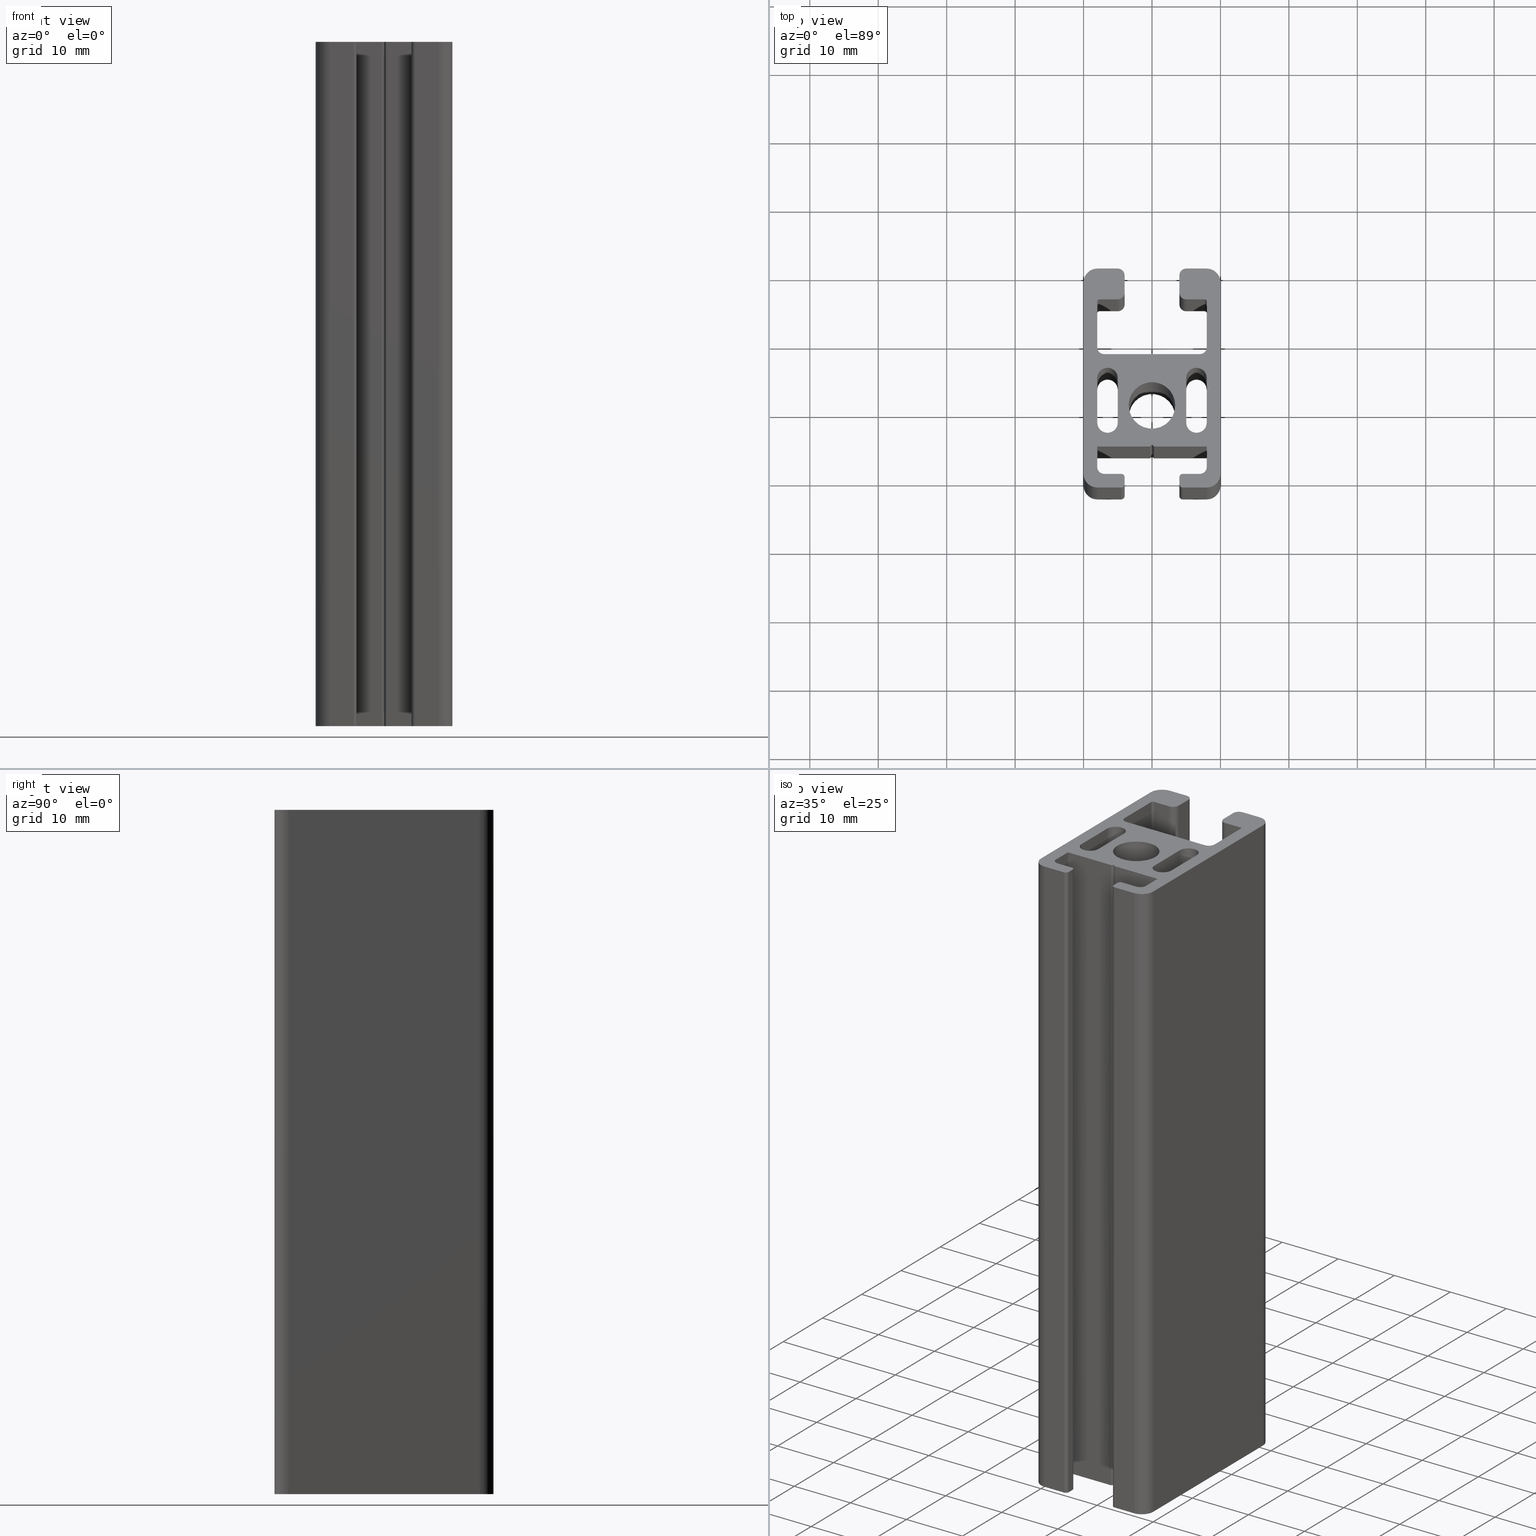
[diagram: canonical four-view strip — front | top / right | iso, engineering-drawing reading convention]
A machine part, canonical four-view strip (front | top / right | iso — engineering-drawing reading convention). The complete STEP part file that produces these views, byte-faithful:
ISO-10303-21;
HEADER;
/* Generated by software containing ST-Developer
 * from STEP Tools, Inc. (www.steptools.com) 
 */

FILE_DESCRIPTION(
/* description */ (''),
/* implementation_level */ '2;1');

FILE_NAME(
/* name */ 
'Q:\\Catalogo\\1_Profili Dierre\\Per Download Web\\Serie 40\\BPRDD0000
032.stp',
/* time_stamp */ '2017-07-12T11:01:27+02:00',
/* author */ ('fzagni'),
/* organization */ (''),
/* preprocessor_version */ 'ST-DEVELOPER v16.1',
/* originating_system */ 'Autodesk Inventor 2016',
/* authorisation */ '');

FILE_SCHEMA (('AUTOMOTIVE_DESIGN { 1 0 10303 214 3 1 1 }'));
ENDSEC;

DATA;
#10=MECHANICAL_DESIGN_GEOMETRIC_PRESENTATION_REPRESENTATION('',(#13),#1742);
#11=SHAPE_REPRESENTATION_RELATIONSHIP('SRR','None',#1751,#12);
#12=ADVANCED_BREP_SHAPE_REPRESENTATION('',(#14),#1741);
#13=STYLED_ITEM('',(#1760),#14);
#14=MANIFOLD_SOLID_BREP('Solido1',#1036);
#15=FACE_BOUND('',#108,.T.);
#16=FACE_BOUND('',#148,.T.);
#17=FACE_BOUND('',#149,.T.);
#18=FACE_BOUND('',#150,.T.);
#19=FACE_BOUND('',#159,.T.);
#20=FACE_BOUND('',#160,.T.);
#21=FACE_BOUND('',#161,.T.);
#22=PLANE('',#1041);
#23=PLANE('',#1045);
#24=PLANE('',#1049);
#25=PLANE('',#1053);
#26=PLANE('',#1063);
#27=PLANE('',#1067);
#28=PLANE('',#1071);
#29=PLANE('',#1072);
#30=PLANE('',#1073);
#31=PLANE('',#1074);
#32=PLANE('',#1075);
#33=PLANE('',#1076);
#34=PLANE('',#1080);
#35=PLANE('',#1084);
#36=PLANE('',#1088);
#37=PLANE('',#1092);
#38=PLANE('',#1096);
#39=PLANE('',#1100);
#40=PLANE('',#1107);
#41=PLANE('',#1111);
#42=PLANE('',#1115);
#43=PLANE('',#1116);
#44=PLANE('',#1117);
#45=PLANE('',#1118);
#46=PLANE('',#1119);
#47=PLANE('',#1126);
#48=PLANE('',#1131);
#49=PLANE('',#1134);
#50=PLANE('',#1135);
#51=FACE_OUTER_BOUND('',#103,.T.);
#52=FACE_OUTER_BOUND('',#104,.T.);
#53=FACE_OUTER_BOUND('',#105,.T.);
#54=FACE_OUTER_BOUND('',#106,.T.);
#55=FACE_OUTER_BOUND('',#107,.T.);
#56=FACE_OUTER_BOUND('',#109,.T.);
#57=FACE_OUTER_BOUND('',#110,.T.);
#58=FACE_OUTER_BOUND('',#111,.T.);
#59=FACE_OUTER_BOUND('',#112,.T.);
#60=FACE_OUTER_BOUND('',#113,.T.);
#61=FACE_OUTER_BOUND('',#114,.T.);
#62=FACE_OUTER_BOUND('',#115,.T.);
#63=FACE_OUTER_BOUND('',#116,.T.);
#64=FACE_OUTER_BOUND('',#117,.T.);
#65=FACE_OUTER_BOUND('',#118,.T.);
#66=FACE_OUTER_BOUND('',#119,.T.);
#67=FACE_OUTER_BOUND('',#120,.T.);
#68=FACE_OUTER_BOUND('',#121,.T.);
#69=FACE_OUTER_BOUND('',#122,.T.);
#70=FACE_OUTER_BOUND('',#123,.T.);
#71=FACE_OUTER_BOUND('',#124,.T.);
#72=FACE_OUTER_BOUND('',#125,.T.);
#73=FACE_OUTER_BOUND('',#126,.T.);
#74=FACE_OUTER_BOUND('',#127,.T.);
#75=FACE_OUTER_BOUND('',#128,.T.);
#76=FACE_OUTER_BOUND('',#129,.T.);
#77=FACE_OUTER_BOUND('',#130,.T.);
#78=FACE_OUTER_BOUND('',#131,.T.);
#79=FACE_OUTER_BOUND('',#132,.T.);
#80=FACE_OUTER_BOUND('',#133,.T.);
#81=FACE_OUTER_BOUND('',#134,.T.);
#82=FACE_OUTER_BOUND('',#135,.T.);
#83=FACE_OUTER_BOUND('',#136,.T.);
#84=FACE_OUTER_BOUND('',#137,.T.);
#85=FACE_OUTER_BOUND('',#138,.T.);
#86=FACE_OUTER_BOUND('',#139,.T.);
#87=FACE_OUTER_BOUND('',#140,.T.);
#88=FACE_OUTER_BOUND('',#141,.T.);
#89=FACE_OUTER_BOUND('',#142,.T.);
#90=FACE_OUTER_BOUND('',#143,.T.);
#91=FACE_OUTER_BOUND('',#144,.T.);
#92=FACE_OUTER_BOUND('',#145,.T.);
#93=FACE_OUTER_BOUND('',#146,.T.);
#94=FACE_OUTER_BOUND('',#147,.T.);
#95=FACE_OUTER_BOUND('',#151,.T.);
#96=FACE_OUTER_BOUND('',#152,.T.);
#97=FACE_OUTER_BOUND('',#153,.T.);
#98=FACE_OUTER_BOUND('',#154,.T.);
#99=FACE_OUTER_BOUND('',#155,.T.);
#100=FACE_OUTER_BOUND('',#156,.T.);
#101=FACE_OUTER_BOUND('',#157,.T.);
#102=FACE_OUTER_BOUND('',#158,.T.);
#103=EDGE_LOOP('',(#663,#664,#665,#666));
#104=EDGE_LOOP('',(#667,#668,#669,#670));
#105=EDGE_LOOP('',(#671,#672,#673,#674));
#106=EDGE_LOOP('',(#675,#676,#677,#678));
#107=EDGE_LOOP('',(#679));
#108=EDGE_LOOP('',(#680));
#109=EDGE_LOOP('',(#681,#682,#683,#684));
#110=EDGE_LOOP('',(#685,#686,#687,#688));
#111=EDGE_LOOP('',(#689,#690,#691,#692));
#112=EDGE_LOOP('',(#693,#694,#695,#696));
#113=EDGE_LOOP('',(#697,#698,#699,#700));
#114=EDGE_LOOP('',(#701,#702,#703,#704));
#115=EDGE_LOOP('',(#705,#706,#707,#708));
#116=EDGE_LOOP('',(#709,#710,#711,#712));
#117=EDGE_LOOP('',(#713,#714,#715,#716));
#118=EDGE_LOOP('',(#717,#718,#719,#720));
#119=EDGE_LOOP('',(#721,#722,#723,#724));
#120=EDGE_LOOP('',(#725,#726,#727,#728));
#121=EDGE_LOOP('',(#729,#730,#731,#732));
#122=EDGE_LOOP('',(#733,#734,#735,#736));
#123=EDGE_LOOP('',(#737,#738,#739,#740));
#124=EDGE_LOOP('',(#741,#742,#743,#744));
#125=EDGE_LOOP('',(#745,#746,#747,#748));
#126=EDGE_LOOP('',(#749,#750,#751,#752));
#127=EDGE_LOOP('',(#753,#754,#755,#756));
#128=EDGE_LOOP('',(#757,#758,#759,#760));
#129=EDGE_LOOP('',(#761,#762,#763,#764));
#130=EDGE_LOOP('',(#765,#766,#767,#768));
#131=EDGE_LOOP('',(#769,#770,#771,#772));
#132=EDGE_LOOP('',(#773,#774,#775,#776));
#133=EDGE_LOOP('',(#777,#778,#779,#780));
#134=EDGE_LOOP('',(#781,#782,#783,#784));
#135=EDGE_LOOP('',(#785,#786,#787,#788));
#136=EDGE_LOOP('',(#789,#790,#791,#792));
#137=EDGE_LOOP('',(#793,#794,#795,#796));
#138=EDGE_LOOP('',(#797,#798,#799,#800));
#139=EDGE_LOOP('',(#801,#802,#803,#804));
#140=EDGE_LOOP('',(#805,#806,#807,#808));
#141=EDGE_LOOP('',(#809,#810,#811,#812));
#142=EDGE_LOOP('',(#813,#814,#815,#816));
#143=EDGE_LOOP('',(#817,#818,#819,#820));
#144=EDGE_LOOP('',(#821,#822,#823,#824));
#145=EDGE_LOOP('',(#825,#826,#827,#828));
#146=EDGE_LOOP('',(#829,#830,#831,#832));
#147=EDGE_LOOP('',(#833,#834,#835,#836,#837,#838,#839,#840,#841,#842,#843,
#844,#845,#846,#847,#848,#849,#850,#851,#852,#853,#854,#855,#856,#857,#858,
#859,#860,#861,#862,#863,#864,#865,#866,#867,#868,#869,#870,#871,#872,#873));
#148=EDGE_LOOP('',(#874,#875,#876,#877));
#149=EDGE_LOOP('',(#878));
#150=EDGE_LOOP('',(#879,#880,#881,#882));
#151=EDGE_LOOP('',(#883,#884,#885,#886));
#152=EDGE_LOOP('',(#887,#888,#889,#890));
#153=EDGE_LOOP('',(#891,#892,#893,#894));
#154=EDGE_LOOP('',(#895,#896,#897,#898));
#155=EDGE_LOOP('',(#899,#900,#901,#902));
#156=EDGE_LOOP('',(#903,#904,#905,#906));
#157=EDGE_LOOP('',(#907,#908,#909,#910));
#158=EDGE_LOOP('',(#911,#912,#913,#914,#915,#916,#917,#918,#919,#920,#921,
#922,#923,#924,#925,#926,#927,#928,#929,#930,#931,#932,#933,#934,#935,#936,
#937,#938,#939,#940,#941,#942,#943,#944,#945,#946,#947,#948,#949,#950,#951));
#159=EDGE_LOOP('',(#952,#953,#954,#955));
#160=EDGE_LOOP('',(#956));
#161=EDGE_LOOP('',(#957,#958,#959,#960));
#162=LINE('',#1443,#265);
#163=LINE('',#1446,#266);
#164=LINE('',#1449,#267);
#165=LINE('',#1451,#268);
#166=LINE('',#1452,#269);
#167=LINE('',#1458,#270);
#168=LINE('',#1460,#271);
#169=LINE('',#1461,#272);
#170=LINE('',#1470,#273);
#171=LINE('',#1472,#274);
#172=LINE('',#1474,#275);
#173=LINE('',#1475,#276);
#174=LINE('',#1480,#277);
#175=LINE('',#1484,#278);
#176=LINE('',#1486,#279);
#177=LINE('',#1487,#280);
#178=LINE('',#1496,#281);
#179=LINE('',#1499,#282);
#180=LINE('',#1505,#283);
#181=LINE('',#1508,#284);
#182=LINE('',#1511,#285);
#183=LINE('',#1513,#286);
#184=LINE('',#1514,#287);
#185=LINE('',#1520,#288);
#186=LINE('',#1523,#289);
#187=LINE('',#1525,#290);
#188=LINE('',#1526,#291);
#189=LINE('',#1532,#292);
#190=LINE('',#1535,#293);
#191=LINE('',#1537,#294);
#192=LINE('',#1538,#295);
#193=LINE('',#1541,#296);
#194=LINE('',#1543,#297);
#195=LINE('',#1544,#298);
#196=LINE('',#1547,#299);
#197=LINE('',#1549,#300);
#198=LINE('',#1550,#301);
#199=LINE('',#1553,#302);
#200=LINE('',#1555,#303);
#201=LINE('',#1556,#304);
#202=LINE('',#1559,#305);
#203=LINE('',#1561,#306);
#204=LINE('',#1562,#307);
#205=LINE('',#1565,#308);
#206=LINE('',#1567,#309);
#207=LINE('',#1568,#310);
#208=LINE('',#1574,#311);
#209=LINE('',#1577,#312);
#210=LINE('',#1579,#313);
#211=LINE('',#1580,#314);
#212=LINE('',#1586,#315);
#213=LINE('',#1588,#316);
#214=LINE('',#1589,#317);
#215=LINE('',#1595,#318);
#216=LINE('',#1598,#319);
#217=LINE('',#1601,#320);
#218=LINE('',#1603,#321);
#219=LINE('',#1604,#322);
#220=LINE('',#1609,#323);
#221=LINE('',#1613,#324);
#222=LINE('',#1615,#325);
#223=LINE('',#1616,#326);
#224=LINE('',#1621,#327);
#225=LINE('',#1625,#328);
#226=LINE('',#1627,#329);
#227=LINE('',#1628,#330);
#228=LINE('',#1633,#331);
#229=LINE('',#1637,#332);
#230=LINE('',#1639,#333);
#231=LINE('',#1640,#334);
#232=LINE('',#1645,#335);
#233=LINE('',#1652,#336);
#234=LINE('',#1655,#337);
#235=LINE('',#1658,#338);
#236=LINE('',#1660,#339);
#237=LINE('',#1661,#340);
#238=LINE('',#1666,#341);
#239=LINE('',#1670,#342);
#240=LINE('',#1672,#343);
#241=LINE('',#1673,#344);
#242=LINE('',#1678,#345);
#243=LINE('',#1681,#346);
#244=LINE('',#1682,#347);
#245=LINE('',#1685,#348);
#246=LINE('',#1687,#349);
#247=LINE('',#1688,#350);
#248=LINE('',#1691,#351);
#249=LINE('',#1693,#352);
#250=LINE('',#1694,#353);
#251=LINE('',#1697,#354);
#252=LINE('',#1699,#355);
#253=LINE('',#1700,#356);
#254=LINE('',#1705,#357);
#255=LINE('',#1710,#358);
#256=LINE('',#1713,#359);
#257=LINE('',#1716,#360);
#258=LINE('',#1719,#361);
#259=LINE('',#1722,#362);
#260=LINE('',#1723,#363);
#261=LINE('',#1728,#364);
#262=LINE('',#1732,#365);
#263=LINE('',#1733,#366);
#264=LINE('',#1737,#367);
#265=VECTOR('',#1142,100.);
#266=VECTOR('',#1145,100.);
#267=VECTOR('',#1148,6.5);
#268=VECTOR('',#1149,6.5);
#269=VECTOR('',#1150,100.);
#270=VECTOR('',#1157,100.);
#271=VECTOR('',#1160,6.5);
#272=VECTOR('',#1161,6.5);
#273=VECTOR('',#1170,6.5);
#274=VECTOR('',#1171,100.);
#275=VECTOR('',#1172,6.5);
#276=VECTOR('',#1173,100.);
#277=VECTOR('',#1178,100.);
#278=VECTOR('',#1183,6.5);
#279=VECTOR('',#1184,100.);
#280=VECTOR('',#1185,6.5);
#281=VECTOR('',#1196,100.);
#282=VECTOR('',#1199,100.);
#283=VECTOR('',#1204,100.);
#284=VECTOR('',#1207,100.);
#285=VECTOR('',#1210,0.999999999999999);
#286=VECTOR('',#1211,0.999999999999999);
#287=VECTOR('',#1212,100.);
#288=VECTOR('',#1219,100.);
#289=VECTOR('',#1222,2.50000057528016);
#290=VECTOR('',#1223,2.50000057528016);
#291=VECTOR('',#1224,100.);
#292=VECTOR('',#1231,100.);
#293=VECTOR('',#1234,3.00000057528016);
#294=VECTOR('',#1235,3.00000057528016);
#295=VECTOR('',#1236,100.);
#296=VECTOR('',#1239,7.7);
#297=VECTOR('',#1240,7.7);
#298=VECTOR('',#1241,100.);
#299=VECTOR('',#1244,0.424264068711929);
#300=VECTOR('',#1245,0.424264068711929);
#301=VECTOR('',#1246,100.);
#302=VECTOR('',#1249,0.424264068711929);
#303=VECTOR('',#1250,0.424264068711929);
#304=VECTOR('',#1251,100.);
#305=VECTOR('',#1254,7.7);
#306=VECTOR('',#1255,7.7);
#307=VECTOR('',#1256,100.);
#308=VECTOR('',#1259,3.00000057528016);
#309=VECTOR('',#1260,3.00000057528016);
#310=VECTOR('',#1261,100.);
#311=VECTOR('',#1268,100.);
#312=VECTOR('',#1271,2.50000057528015);
#313=VECTOR('',#1272,2.50000057528015);
#314=VECTOR('',#1273,100.);
#315=VECTOR('',#1280,100.);
#316=VECTOR('',#1283,1.);
#317=VECTOR('',#1284,1.);
#318=VECTOR('',#1289,100.);
#319=VECTOR('',#1292,100.);
#320=VECTOR('',#1295,14.0000039919057);
#321=VECTOR('',#1296,100.);
#322=VECTOR('',#1297,14.0000039919057);
#323=VECTOR('',#1302,100.);
#324=VECTOR('',#1307,6.70000144973492);
#325=VECTOR('',#1308,100.);
#326=VECTOR('',#1309,6.70000144973492);
#327=VECTOR('',#1314,100.);
#328=VECTOR('',#1319,2.70000144973506);
#329=VECTOR('',#1320,100.);
#330=VECTOR('',#1321,2.70000144973506);
#331=VECTOR('',#1326,100.);
#332=VECTOR('',#1331,2.50000399190595);
#333=VECTOR('',#1332,100.);
#334=VECTOR('',#1333,2.50000399190595);
#335=VECTOR('',#1338,100.);
#336=VECTOR('',#1345,100.);
#337=VECTOR('',#1348,100.);
#338=VECTOR('',#1351,2.50000399190594);
#339=VECTOR('',#1352,100.);
#340=VECTOR('',#1353,2.50000399190594);
#341=VECTOR('',#1358,100.);
#342=VECTOR('',#1363,2.70000144973507);
#343=VECTOR('',#1364,100.);
#344=VECTOR('',#1365,2.70000144973507);
#345=VECTOR('',#1370,100.);
#346=VECTOR('',#1375,6.70000144973493);
#347=VECTOR('',#1376,6.70000144973493);
#348=VECTOR('',#1379,3.50000000000001);
#349=VECTOR('',#1380,100.);
#350=VECTOR('',#1381,3.50000000000001);
#351=VECTOR('',#1384,3.00000199595299);
#352=VECTOR('',#1385,100.);
#353=VECTOR('',#1386,3.00000199595299);
#354=VECTOR('',#1389,3.00000199595298);
#355=VECTOR('',#1390,100.);
#356=VECTOR('',#1391,3.00000199595298);
#357=VECTOR('',#1396,28.);
#358=VECTOR('',#1401,28.);
#359=VECTOR('',#1404,3.50000000000001);
#360=VECTOR('',#1407,100.);
#361=VECTOR('',#1410,100.);
#362=VECTOR('',#1413,100.);
#363=VECTOR('',#1414,28.);
#364=VECTOR('',#1421,100.);
#365=VECTOR('',#1426,100.);
#366=VECTOR('',#1427,28.);
#367=VECTOR('',#1434,3.50000000000001);
#368=CIRCLE('',#1039,1.5);
#369=CIRCLE('',#1040,1.5);
#370=CIRCLE('',#1043,1.5);
#371=CIRCLE('',#1044,1.5);
#372=CIRCLE('',#1047,3.4);
#373=CIRCLE('',#1048,3.4);
#374=CIRCLE('',#1051,1.5);
#375=CIRCLE('',#1052,1.5);
#376=CIRCLE('',#1055,1.5);
#377=CIRCLE('',#1056,1.5);
#378=CIRCLE('',#1058,0.5);
#379=CIRCLE('',#1059,0.5);
#380=CIRCLE('',#1061,0.5);
#381=CIRCLE('',#1062,0.5);
#382=CIRCLE('',#1065,0.5);
#383=CIRCLE('',#1066,0.5);
#384=CIRCLE('',#1069,0.999999424719845);
#385=CIRCLE('',#1070,0.999999424719845);
#386=CIRCLE('',#1078,0.999999424719841);
#387=CIRCLE('',#1079,0.999999424719841);
#388=CIRCLE('',#1082,0.5);
#389=CIRCLE('',#1083,0.5);
#390=CIRCLE('',#1086,0.999998004047153);
#391=CIRCLE('',#1087,0.999998004047153);
#392=CIRCLE('',#1090,0.99999800404715);
#393=CIRCLE('',#1091,0.99999800404715);
#394=CIRCLE('',#1094,0.300000546217916);
#395=CIRCLE('',#1095,0.300000546217916);
#396=CIRCLE('',#1098,0.999998004047022);
#397=CIRCLE('',#1099,0.999998004047022);
#398=CIRCLE('',#1102,0.999998004047022);
#399=CIRCLE('',#1103,0.999998004047022);
#400=CIRCLE('',#1105,0.999998004047026);
#401=CIRCLE('',#1106,0.999998004047026);
#402=CIRCLE('',#1109,0.999998004047022);
#403=CIRCLE('',#1110,0.999998004047022);
#404=CIRCLE('',#1113,0.300000546217913);
#405=CIRCLE('',#1114,0.300000546217913);
#406=CIRCLE('',#1120,2.);
#407=CIRCLE('',#1121,2.);
#408=CIRCLE('',#1122,1.99999999999999);
#409=CIRCLE('',#1123,2.);
#410=CIRCLE('',#1125,2.);
#411=CIRCLE('',#1128,1.99999999999999);
#412=CIRCLE('',#1130,2.);
#413=CIRCLE('',#1133,2.);
#414=VERTEX_POINT('',#1439);
#415=VERTEX_POINT('',#1440);
#416=VERTEX_POINT('',#1442);
#417=VERTEX_POINT('',#1444);
#418=VERTEX_POINT('',#1448);
#419=VERTEX_POINT('',#1450);
#420=VERTEX_POINT('',#1454);
#421=VERTEX_POINT('',#1456);
#422=VERTEX_POINT('',#1463);
#423=VERTEX_POINT('',#1465);
#424=VERTEX_POINT('',#1468);
#425=VERTEX_POINT('',#1469);
#426=VERTEX_POINT('',#1471);
#427=VERTEX_POINT('',#1473);
#428=VERTEX_POINT('',#1477);
#429=VERTEX_POINT('',#1479);
#430=VERTEX_POINT('',#1483);
#431=VERTEX_POINT('',#1485);
#432=VERTEX_POINT('',#1492);
#433=VERTEX_POINT('',#1493);
#434=VERTEX_POINT('',#1495);
#435=VERTEX_POINT('',#1497);
#436=VERTEX_POINT('',#1501);
#437=VERTEX_POINT('',#1502);
#438=VERTEX_POINT('',#1504);
#439=VERTEX_POINT('',#1506);
#440=VERTEX_POINT('',#1510);
#441=VERTEX_POINT('',#1512);
#442=VERTEX_POINT('',#1516);
#443=VERTEX_POINT('',#1518);
#444=VERTEX_POINT('',#1522);
#445=VERTEX_POINT('',#1524);
#446=VERTEX_POINT('',#1528);
#447=VERTEX_POINT('',#1530);
#448=VERTEX_POINT('',#1534);
#449=VERTEX_POINT('',#1536);
#450=VERTEX_POINT('',#1540);
#451=VERTEX_POINT('',#1542);
#452=VERTEX_POINT('',#1546);
#453=VERTEX_POINT('',#1548);
#454=VERTEX_POINT('',#1552);
#455=VERTEX_POINT('',#1554);
#456=VERTEX_POINT('',#1558);
#457=VERTEX_POINT('',#1560);
#458=VERTEX_POINT('',#1564);
#459=VERTEX_POINT('',#1566);
#460=VERTEX_POINT('',#1570);
#461=VERTEX_POINT('',#1572);
#462=VERTEX_POINT('',#1576);
#463=VERTEX_POINT('',#1578);
#464=VERTEX_POINT('',#1582);
#465=VERTEX_POINT('',#1584);
#466=VERTEX_POINT('',#1591);
#467=VERTEX_POINT('',#1592);
#468=VERTEX_POINT('',#1594);
#469=VERTEX_POINT('',#1596);
#470=VERTEX_POINT('',#1600);
#471=VERTEX_POINT('',#1602);
#472=VERTEX_POINT('',#1606);
#473=VERTEX_POINT('',#1608);
#474=VERTEX_POINT('',#1612);
#475=VERTEX_POINT('',#1614);
#476=VERTEX_POINT('',#1618);
#477=VERTEX_POINT('',#1620);
#478=VERTEX_POINT('',#1624);
#479=VERTEX_POINT('',#1626);
#480=VERTEX_POINT('',#1630);
#481=VERTEX_POINT('',#1632);
#482=VERTEX_POINT('',#1636);
#483=VERTEX_POINT('',#1638);
#484=VERTEX_POINT('',#1642);
#485=VERTEX_POINT('',#1644);
#486=VERTEX_POINT('',#1648);
#487=VERTEX_POINT('',#1649);
#488=VERTEX_POINT('',#1651);
#489=VERTEX_POINT('',#1653);
#490=VERTEX_POINT('',#1657);
#491=VERTEX_POINT('',#1659);
#492=VERTEX_POINT('',#1663);
#493=VERTEX_POINT('',#1665);
#494=VERTEX_POINT('',#1669);
#495=VERTEX_POINT('',#1671);
#496=VERTEX_POINT('',#1675);
#497=VERTEX_POINT('',#1677);
#498=VERTEX_POINT('',#1684);
#499=VERTEX_POINT('',#1686);
#500=VERTEX_POINT('',#1690);
#501=VERTEX_POINT('',#1692);
#502=VERTEX_POINT('',#1696);
#503=VERTEX_POINT('',#1698);
#504=VERTEX_POINT('',#1702);
#505=VERTEX_POINT('',#1704);
#506=VERTEX_POINT('',#1707);
#507=VERTEX_POINT('',#1709);
#508=VERTEX_POINT('',#1711);
#509=VERTEX_POINT('',#1715);
#510=VERTEX_POINT('',#1717);
#511=VERTEX_POINT('',#1721);
#512=VERTEX_POINT('',#1727);
#513=VERTEX_POINT('',#1731);
#514=EDGE_CURVE('',#414,#415,#368,.T.);
#515=EDGE_CURVE('',#416,#414,#162,.T.);
#516=EDGE_CURVE('',#417,#416,#369,.T.);
#517=EDGE_CURVE('',#417,#415,#163,.T.);
#518=EDGE_CURVE('',#415,#418,#164,.T.);
#519=EDGE_CURVE('',#419,#417,#165,.T.);
#520=EDGE_CURVE('',#419,#418,#166,.T.);
#521=EDGE_CURVE('',#418,#420,#370,.T.);
#522=EDGE_CURVE('',#421,#419,#371,.T.);
#523=EDGE_CURVE('',#421,#420,#167,.T.);
#524=EDGE_CURVE('',#420,#414,#168,.T.);
#525=EDGE_CURVE('',#416,#421,#169,.T.);
#526=EDGE_CURVE('',#422,#422,#372,.T.);
#527=EDGE_CURVE('',#423,#423,#373,.T.);
#528=EDGE_CURVE('',#424,#425,#170,.T.);
#529=EDGE_CURVE('',#426,#424,#171,.T.);
#530=EDGE_CURVE('',#427,#426,#172,.T.);
#531=EDGE_CURVE('',#427,#425,#173,.T.);
#532=EDGE_CURVE('',#428,#424,#374,.T.);
#533=EDGE_CURVE('',#429,#428,#174,.T.);
#534=EDGE_CURVE('',#426,#429,#375,.T.);
#535=EDGE_CURVE('',#430,#428,#175,.T.);
#536=EDGE_CURVE('',#431,#430,#176,.T.);
#537=EDGE_CURVE('',#429,#431,#177,.T.);
#538=EDGE_CURVE('',#425,#430,#376,.T.);
#539=EDGE_CURVE('',#431,#427,#377,.T.);
#540=EDGE_CURVE('',#432,#433,#378,.T.);
#541=EDGE_CURVE('',#434,#432,#178,.T.);
#542=EDGE_CURVE('',#435,#434,#379,.T.);
#543=EDGE_CURVE('',#433,#435,#179,.T.);
#544=EDGE_CURVE('',#436,#437,#380,.T.);
#545=EDGE_CURVE('',#436,#438,#180,.T.);
#546=EDGE_CURVE('',#439,#438,#381,.T.);
#547=EDGE_CURVE('',#439,#437,#181,.T.);
#548=EDGE_CURVE('',#437,#440,#182,.T.);
#549=EDGE_CURVE('',#441,#439,#183,.T.);
#550=EDGE_CURVE('',#441,#440,#184,.T.);
#551=EDGE_CURVE('',#440,#442,#382,.T.);
#552=EDGE_CURVE('',#443,#441,#383,.T.);
#553=EDGE_CURVE('',#443,#442,#185,.T.);
#554=EDGE_CURVE('',#442,#444,#186,.T.);
#555=EDGE_CURVE('',#445,#443,#187,.T.);
#556=EDGE_CURVE('',#445,#444,#188,.T.);
#557=EDGE_CURVE('',#444,#446,#384,.T.);
#558=EDGE_CURVE('',#447,#445,#385,.T.);
#559=EDGE_CURVE('',#447,#446,#189,.T.);
#560=EDGE_CURVE('',#446,#448,#190,.T.);
#561=EDGE_CURVE('',#449,#447,#191,.T.);
#562=EDGE_CURVE('',#449,#448,#192,.T.);
#563=EDGE_CURVE('',#448,#450,#193,.T.);
#564=EDGE_CURVE('',#451,#449,#194,.T.);
#565=EDGE_CURVE('',#451,#450,#195,.T.);
#566=EDGE_CURVE('',#450,#452,#196,.T.);
#567=EDGE_CURVE('',#453,#451,#197,.T.);
#568=EDGE_CURVE('',#453,#452,#198,.T.);
#569=EDGE_CURVE('',#452,#454,#199,.T.);
#570=EDGE_CURVE('',#455,#453,#200,.T.);
#571=EDGE_CURVE('',#455,#454,#201,.T.);
#572=EDGE_CURVE('',#454,#456,#202,.T.);
#573=EDGE_CURVE('',#457,#455,#203,.T.);
#574=EDGE_CURVE('',#457,#456,#204,.T.);
#575=EDGE_CURVE('',#456,#458,#205,.T.);
#576=EDGE_CURVE('',#459,#457,#206,.T.);
#577=EDGE_CURVE('',#459,#458,#207,.T.);
#578=EDGE_CURVE('',#458,#460,#386,.T.);
#579=EDGE_CURVE('',#461,#459,#387,.T.);
#580=EDGE_CURVE('',#461,#460,#208,.T.);
#581=EDGE_CURVE('',#460,#462,#209,.T.);
#582=EDGE_CURVE('',#463,#461,#210,.T.);
#583=EDGE_CURVE('',#463,#462,#211,.T.);
#584=EDGE_CURVE('',#462,#464,#388,.T.);
#585=EDGE_CURVE('',#465,#463,#389,.T.);
#586=EDGE_CURVE('',#465,#464,#212,.T.);
#587=EDGE_CURVE('',#464,#432,#213,.T.);
#588=EDGE_CURVE('',#434,#465,#214,.T.);
#589=EDGE_CURVE('',#466,#467,#390,.T.);
#590=EDGE_CURVE('',#468,#466,#215,.T.);
#591=EDGE_CURVE('',#469,#468,#391,.T.);
#592=EDGE_CURVE('',#469,#467,#216,.T.);
#593=EDGE_CURVE('',#470,#466,#217,.T.);
#594=EDGE_CURVE('',#471,#470,#218,.T.);
#595=EDGE_CURVE('',#468,#471,#219,.T.);
#596=EDGE_CURVE('',#472,#470,#392,.T.);
#597=EDGE_CURVE('',#473,#472,#220,.T.);
#598=EDGE_CURVE('',#471,#473,#393,.T.);
#599=EDGE_CURVE('',#474,#472,#221,.T.);
#600=EDGE_CURVE('',#475,#474,#222,.T.);
#601=EDGE_CURVE('',#473,#475,#223,.T.);
#602=EDGE_CURVE('',#476,#474,#394,.T.);
#603=EDGE_CURVE('',#477,#476,#224,.T.);
#604=EDGE_CURVE('',#475,#477,#395,.T.);
#605=EDGE_CURVE('',#478,#476,#225,.T.);
#606=EDGE_CURVE('',#479,#478,#226,.T.);
#607=EDGE_CURVE('',#477,#479,#227,.T.);
#608=EDGE_CURVE('',#480,#478,#396,.T.);
#609=EDGE_CURVE('',#481,#480,#228,.T.);
#610=EDGE_CURVE('',#479,#481,#397,.T.);
#611=EDGE_CURVE('',#482,#480,#229,.T.);
#612=EDGE_CURVE('',#483,#482,#230,.T.);
#613=EDGE_CURVE('',#481,#483,#231,.T.);
#614=EDGE_CURVE('',#484,#482,#398,.T.);
#615=EDGE_CURVE('',#484,#485,#232,.T.);
#616=EDGE_CURVE('',#483,#485,#399,.T.);
#617=EDGE_CURVE('',#486,#487,#400,.T.);
#618=EDGE_CURVE('',#488,#486,#233,.T.);
#619=EDGE_CURVE('',#489,#488,#401,.T.);
#620=EDGE_CURVE('',#487,#489,#234,.T.);
#621=EDGE_CURVE('',#490,#486,#235,.T.);
#622=EDGE_CURVE('',#491,#490,#236,.T.);
#623=EDGE_CURVE('',#488,#491,#237,.T.);
#624=EDGE_CURVE('',#492,#490,#402,.T.);
#625=EDGE_CURVE('',#493,#492,#238,.T.);
#626=EDGE_CURVE('',#491,#493,#403,.T.);
#627=EDGE_CURVE('',#494,#492,#239,.T.);
#628=EDGE_CURVE('',#495,#494,#240,.T.);
#629=EDGE_CURVE('',#493,#495,#241,.T.);
#630=EDGE_CURVE('',#496,#494,#404,.T.);
#631=EDGE_CURVE('',#497,#496,#242,.T.);
#632=EDGE_CURVE('',#495,#497,#405,.T.);
#633=EDGE_CURVE('',#467,#496,#243,.T.);
#634=EDGE_CURVE('',#497,#469,#244,.T.);
#635=EDGE_CURVE('',#498,#435,#245,.T.);
#636=EDGE_CURVE('',#498,#499,#246,.T.);
#637=EDGE_CURVE('',#499,#433,#247,.T.);
#638=EDGE_CURVE('',#500,#489,#248,.T.);
#639=EDGE_CURVE('',#500,#501,#249,.T.);
#640=EDGE_CURVE('',#501,#487,#250,.T.);
#641=EDGE_CURVE('',#484,#502,#251,.T.);
#642=EDGE_CURVE('',#503,#502,#252,.T.);
#643=EDGE_CURVE('',#485,#503,#253,.T.);
#644=EDGE_CURVE('',#504,#499,#406,.T.);
#645=EDGE_CURVE('',#505,#504,#254,.T.);
#646=EDGE_CURVE('',#502,#505,#407,.T.);
#647=EDGE_CURVE('',#506,#501,#408,.T.);
#648=EDGE_CURVE('',#507,#506,#255,.T.);
#649=EDGE_CURVE('',#508,#507,#409,.T.);
#650=EDGE_CURVE('',#436,#508,#256,.T.);
#651=EDGE_CURVE('',#509,#507,#257,.T.);
#652=EDGE_CURVE('',#510,#509,#410,.T.);
#653=EDGE_CURVE('',#510,#508,#258,.T.);
#654=EDGE_CURVE('',#511,#506,#259,.T.);
#655=EDGE_CURVE('',#509,#511,#260,.T.);
#656=EDGE_CURVE('',#511,#500,#411,.T.);
#657=EDGE_CURVE('',#512,#505,#261,.T.);
#658=EDGE_CURVE('',#503,#512,#412,.T.);
#659=EDGE_CURVE('',#513,#504,#262,.T.);
#660=EDGE_CURVE('',#512,#513,#263,.T.);
#661=EDGE_CURVE('',#513,#498,#413,.T.);
#662=EDGE_CURVE('',#438,#510,#264,.T.);
#663=ORIENTED_EDGE('',*,*,#514,.F.);
#664=ORIENTED_EDGE('',*,*,#515,.F.);
#665=ORIENTED_EDGE('',*,*,#516,.F.);
#666=ORIENTED_EDGE('',*,*,#517,.T.);
#667=ORIENTED_EDGE('',*,*,#518,.F.);
#668=ORIENTED_EDGE('',*,*,#517,.F.);
#669=ORIENTED_EDGE('',*,*,#519,.F.);
#670=ORIENTED_EDGE('',*,*,#520,.T.);
#671=ORIENTED_EDGE('',*,*,#521,.F.);
#672=ORIENTED_EDGE('',*,*,#520,.F.);
#673=ORIENTED_EDGE('',*,*,#522,.F.);
#674=ORIENTED_EDGE('',*,*,#523,.T.);
#675=ORIENTED_EDGE('',*,*,#524,.F.);
#676=ORIENTED_EDGE('',*,*,#523,.F.);
#677=ORIENTED_EDGE('',*,*,#525,.F.);
#678=ORIENTED_EDGE('',*,*,#515,.T.);
#679=ORIENTED_EDGE('',*,*,#526,.F.);
#680=ORIENTED_EDGE('',*,*,#527,.F.);
#681=ORIENTED_EDGE('',*,*,#528,.F.);
#682=ORIENTED_EDGE('',*,*,#529,.F.);
#683=ORIENTED_EDGE('',*,*,#530,.F.);
#684=ORIENTED_EDGE('',*,*,#531,.T.);
#685=ORIENTED_EDGE('',*,*,#532,.F.);
#686=ORIENTED_EDGE('',*,*,#533,.F.);
#687=ORIENTED_EDGE('',*,*,#534,.F.);
#688=ORIENTED_EDGE('',*,*,#529,.T.);
#689=ORIENTED_EDGE('',*,*,#535,.F.);
#690=ORIENTED_EDGE('',*,*,#536,.F.);
#691=ORIENTED_EDGE('',*,*,#537,.F.);
#692=ORIENTED_EDGE('',*,*,#533,.T.);
#693=ORIENTED_EDGE('',*,*,#538,.F.);
#694=ORIENTED_EDGE('',*,*,#531,.F.);
#695=ORIENTED_EDGE('',*,*,#539,.F.);
#696=ORIENTED_EDGE('',*,*,#536,.T.);
#697=ORIENTED_EDGE('',*,*,#540,.F.);
#698=ORIENTED_EDGE('',*,*,#541,.F.);
#699=ORIENTED_EDGE('',*,*,#542,.F.);
#700=ORIENTED_EDGE('',*,*,#543,.F.);
#701=ORIENTED_EDGE('',*,*,#544,.F.);
#702=ORIENTED_EDGE('',*,*,#545,.T.);
#703=ORIENTED_EDGE('',*,*,#546,.F.);
#704=ORIENTED_EDGE('',*,*,#547,.T.);
#705=ORIENTED_EDGE('',*,*,#548,.F.);
#706=ORIENTED_EDGE('',*,*,#547,.F.);
#707=ORIENTED_EDGE('',*,*,#549,.F.);
#708=ORIENTED_EDGE('',*,*,#550,.T.);
#709=ORIENTED_EDGE('',*,*,#551,.F.);
#710=ORIENTED_EDGE('',*,*,#550,.F.);
#711=ORIENTED_EDGE('',*,*,#552,.F.);
#712=ORIENTED_EDGE('',*,*,#553,.T.);
#713=ORIENTED_EDGE('',*,*,#554,.F.);
#714=ORIENTED_EDGE('',*,*,#553,.F.);
#715=ORIENTED_EDGE('',*,*,#555,.F.);
#716=ORIENTED_EDGE('',*,*,#556,.T.);
#717=ORIENTED_EDGE('',*,*,#557,.F.);
#718=ORIENTED_EDGE('',*,*,#556,.F.);
#719=ORIENTED_EDGE('',*,*,#558,.F.);
#720=ORIENTED_EDGE('',*,*,#559,.T.);
#721=ORIENTED_EDGE('',*,*,#560,.F.);
#722=ORIENTED_EDGE('',*,*,#559,.F.);
#723=ORIENTED_EDGE('',*,*,#561,.F.);
#724=ORIENTED_EDGE('',*,*,#562,.T.);
#725=ORIENTED_EDGE('',*,*,#563,.F.);
#726=ORIENTED_EDGE('',*,*,#562,.F.);
#727=ORIENTED_EDGE('',*,*,#564,.F.);
#728=ORIENTED_EDGE('',*,*,#565,.T.);
#729=ORIENTED_EDGE('',*,*,#566,.F.);
#730=ORIENTED_EDGE('',*,*,#565,.F.);
#731=ORIENTED_EDGE('',*,*,#567,.F.);
#732=ORIENTED_EDGE('',*,*,#568,.T.);
#733=ORIENTED_EDGE('',*,*,#569,.F.);
#734=ORIENTED_EDGE('',*,*,#568,.F.);
#735=ORIENTED_EDGE('',*,*,#570,.F.);
#736=ORIENTED_EDGE('',*,*,#571,.T.);
#737=ORIENTED_EDGE('',*,*,#572,.F.);
#738=ORIENTED_EDGE('',*,*,#571,.F.);
#739=ORIENTED_EDGE('',*,*,#573,.F.);
#740=ORIENTED_EDGE('',*,*,#574,.T.);
#741=ORIENTED_EDGE('',*,*,#575,.F.);
#742=ORIENTED_EDGE('',*,*,#574,.F.);
#743=ORIENTED_EDGE('',*,*,#576,.F.);
#744=ORIENTED_EDGE('',*,*,#577,.T.);
#745=ORIENTED_EDGE('',*,*,#578,.F.);
#746=ORIENTED_EDGE('',*,*,#577,.F.);
#747=ORIENTED_EDGE('',*,*,#579,.F.);
#748=ORIENTED_EDGE('',*,*,#580,.T.);
#749=ORIENTED_EDGE('',*,*,#581,.F.);
#750=ORIENTED_EDGE('',*,*,#580,.F.);
#751=ORIENTED_EDGE('',*,*,#582,.F.);
#752=ORIENTED_EDGE('',*,*,#583,.T.);
#753=ORIENTED_EDGE('',*,*,#584,.F.);
#754=ORIENTED_EDGE('',*,*,#583,.F.);
#755=ORIENTED_EDGE('',*,*,#585,.F.);
#756=ORIENTED_EDGE('',*,*,#586,.T.);
#757=ORIENTED_EDGE('',*,*,#587,.F.);
#758=ORIENTED_EDGE('',*,*,#586,.F.);
#759=ORIENTED_EDGE('',*,*,#588,.F.);
#760=ORIENTED_EDGE('',*,*,#541,.T.);
#761=ORIENTED_EDGE('',*,*,#589,.F.);
#762=ORIENTED_EDGE('',*,*,#590,.F.);
#763=ORIENTED_EDGE('',*,*,#591,.F.);
#764=ORIENTED_EDGE('',*,*,#592,.T.);
#765=ORIENTED_EDGE('',*,*,#593,.F.);
#766=ORIENTED_EDGE('',*,*,#594,.F.);
#767=ORIENTED_EDGE('',*,*,#595,.F.);
#768=ORIENTED_EDGE('',*,*,#590,.T.);
#769=ORIENTED_EDGE('',*,*,#596,.F.);
#770=ORIENTED_EDGE('',*,*,#597,.F.);
#771=ORIENTED_EDGE('',*,*,#598,.F.);
#772=ORIENTED_EDGE('',*,*,#594,.T.);
#773=ORIENTED_EDGE('',*,*,#599,.F.);
#774=ORIENTED_EDGE('',*,*,#600,.F.);
#775=ORIENTED_EDGE('',*,*,#601,.F.);
#776=ORIENTED_EDGE('',*,*,#597,.T.);
#777=ORIENTED_EDGE('',*,*,#602,.F.);
#778=ORIENTED_EDGE('',*,*,#603,.F.);
#779=ORIENTED_EDGE('',*,*,#604,.F.);
#780=ORIENTED_EDGE('',*,*,#600,.T.);
#781=ORIENTED_EDGE('',*,*,#605,.F.);
#782=ORIENTED_EDGE('',*,*,#606,.F.);
#783=ORIENTED_EDGE('',*,*,#607,.F.);
#784=ORIENTED_EDGE('',*,*,#603,.T.);
#785=ORIENTED_EDGE('',*,*,#608,.F.);
#786=ORIENTED_EDGE('',*,*,#609,.F.);
#787=ORIENTED_EDGE('',*,*,#610,.F.);
#788=ORIENTED_EDGE('',*,*,#606,.T.);
#789=ORIENTED_EDGE('',*,*,#611,.F.);
#790=ORIENTED_EDGE('',*,*,#612,.F.);
#791=ORIENTED_EDGE('',*,*,#613,.F.);
#792=ORIENTED_EDGE('',*,*,#609,.T.);
#793=ORIENTED_EDGE('',*,*,#614,.F.);
#794=ORIENTED_EDGE('',*,*,#615,.T.);
#795=ORIENTED_EDGE('',*,*,#616,.F.);
#796=ORIENTED_EDGE('',*,*,#612,.T.);
#797=ORIENTED_EDGE('',*,*,#617,.F.);
#798=ORIENTED_EDGE('',*,*,#618,.F.);
#799=ORIENTED_EDGE('',*,*,#619,.F.);
#800=ORIENTED_EDGE('',*,*,#620,.F.);
#801=ORIENTED_EDGE('',*,*,#621,.F.);
#802=ORIENTED_EDGE('',*,*,#622,.F.);
#803=ORIENTED_EDGE('',*,*,#623,.F.);
#804=ORIENTED_EDGE('',*,*,#618,.T.);
#805=ORIENTED_EDGE('',*,*,#624,.F.);
#806=ORIENTED_EDGE('',*,*,#625,.F.);
#807=ORIENTED_EDGE('',*,*,#626,.F.);
#808=ORIENTED_EDGE('',*,*,#622,.T.);
#809=ORIENTED_EDGE('',*,*,#627,.F.);
#810=ORIENTED_EDGE('',*,*,#628,.F.);
#811=ORIENTED_EDGE('',*,*,#629,.F.);
#812=ORIENTED_EDGE('',*,*,#625,.T.);
#813=ORIENTED_EDGE('',*,*,#630,.F.);
#814=ORIENTED_EDGE('',*,*,#631,.F.);
#815=ORIENTED_EDGE('',*,*,#632,.F.);
#816=ORIENTED_EDGE('',*,*,#628,.T.);
#817=ORIENTED_EDGE('',*,*,#633,.F.);
#818=ORIENTED_EDGE('',*,*,#592,.F.);
#819=ORIENTED_EDGE('',*,*,#634,.F.);
#820=ORIENTED_EDGE('',*,*,#631,.T.);
#821=ORIENTED_EDGE('',*,*,#543,.T.);
#822=ORIENTED_EDGE('',*,*,#635,.F.);
#823=ORIENTED_EDGE('',*,*,#636,.T.);
#824=ORIENTED_EDGE('',*,*,#637,.T.);
#825=ORIENTED_EDGE('',*,*,#620,.T.);
#826=ORIENTED_EDGE('',*,*,#638,.F.);
#827=ORIENTED_EDGE('',*,*,#639,.T.);
#828=ORIENTED_EDGE('',*,*,#640,.T.);
#829=ORIENTED_EDGE('',*,*,#615,.F.);
#830=ORIENTED_EDGE('',*,*,#641,.T.);
#831=ORIENTED_EDGE('',*,*,#642,.F.);
#832=ORIENTED_EDGE('',*,*,#643,.F.);
#833=ORIENTED_EDGE('',*,*,#544,.T.);
#834=ORIENTED_EDGE('',*,*,#548,.T.);
#835=ORIENTED_EDGE('',*,*,#551,.T.);
#836=ORIENTED_EDGE('',*,*,#554,.T.);
#837=ORIENTED_EDGE('',*,*,#557,.T.);
#838=ORIENTED_EDGE('',*,*,#560,.T.);
#839=ORIENTED_EDGE('',*,*,#563,.T.);
#840=ORIENTED_EDGE('',*,*,#566,.T.);
#841=ORIENTED_EDGE('',*,*,#569,.T.);
#842=ORIENTED_EDGE('',*,*,#572,.T.);
#843=ORIENTED_EDGE('',*,*,#575,.T.);
#844=ORIENTED_EDGE('',*,*,#578,.T.);
#845=ORIENTED_EDGE('',*,*,#581,.T.);
#846=ORIENTED_EDGE('',*,*,#584,.T.);
#847=ORIENTED_EDGE('',*,*,#587,.T.);
#848=ORIENTED_EDGE('',*,*,#540,.T.);
#849=ORIENTED_EDGE('',*,*,#637,.F.);
#850=ORIENTED_EDGE('',*,*,#644,.F.);
#851=ORIENTED_EDGE('',*,*,#645,.F.);
#852=ORIENTED_EDGE('',*,*,#646,.F.);
#853=ORIENTED_EDGE('',*,*,#641,.F.);
#854=ORIENTED_EDGE('',*,*,#614,.T.);
#855=ORIENTED_EDGE('',*,*,#611,.T.);
#856=ORIENTED_EDGE('',*,*,#608,.T.);
#857=ORIENTED_EDGE('',*,*,#605,.T.);
#858=ORIENTED_EDGE('',*,*,#602,.T.);
#859=ORIENTED_EDGE('',*,*,#599,.T.);
#860=ORIENTED_EDGE('',*,*,#596,.T.);
#861=ORIENTED_EDGE('',*,*,#593,.T.);
#862=ORIENTED_EDGE('',*,*,#589,.T.);
#863=ORIENTED_EDGE('',*,*,#633,.T.);
#864=ORIENTED_EDGE('',*,*,#630,.T.);
#865=ORIENTED_EDGE('',*,*,#627,.T.);
#866=ORIENTED_EDGE('',*,*,#624,.T.);
#867=ORIENTED_EDGE('',*,*,#621,.T.);
#868=ORIENTED_EDGE('',*,*,#617,.T.);
#869=ORIENTED_EDGE('',*,*,#640,.F.);
#870=ORIENTED_EDGE('',*,*,#647,.F.);
#871=ORIENTED_EDGE('',*,*,#648,.F.);
#872=ORIENTED_EDGE('',*,*,#649,.F.);
#873=ORIENTED_EDGE('',*,*,#650,.F.);
#874=ORIENTED_EDGE('',*,*,#528,.T.);
#875=ORIENTED_EDGE('',*,*,#538,.T.);
#876=ORIENTED_EDGE('',*,*,#535,.T.);
#877=ORIENTED_EDGE('',*,*,#532,.T.);
#878=ORIENTED_EDGE('',*,*,#526,.T.);
#879=ORIENTED_EDGE('',*,*,#514,.T.);
#880=ORIENTED_EDGE('',*,*,#518,.T.);
#881=ORIENTED_EDGE('',*,*,#521,.T.);
#882=ORIENTED_EDGE('',*,*,#524,.T.);
#883=ORIENTED_EDGE('',*,*,#649,.T.);
#884=ORIENTED_EDGE('',*,*,#651,.F.);
#885=ORIENTED_EDGE('',*,*,#652,.F.);
#886=ORIENTED_EDGE('',*,*,#653,.T.);
#887=ORIENTED_EDGE('',*,*,#648,.T.);
#888=ORIENTED_EDGE('',*,*,#654,.F.);
#889=ORIENTED_EDGE('',*,*,#655,.F.);
#890=ORIENTED_EDGE('',*,*,#651,.T.);
#891=ORIENTED_EDGE('',*,*,#647,.T.);
#892=ORIENTED_EDGE('',*,*,#639,.F.);
#893=ORIENTED_EDGE('',*,*,#656,.F.);
#894=ORIENTED_EDGE('',*,*,#654,.T.);
#895=ORIENTED_EDGE('',*,*,#646,.T.);
#896=ORIENTED_EDGE('',*,*,#657,.F.);
#897=ORIENTED_EDGE('',*,*,#658,.F.);
#898=ORIENTED_EDGE('',*,*,#642,.T.);
#899=ORIENTED_EDGE('',*,*,#645,.T.);
#900=ORIENTED_EDGE('',*,*,#659,.F.);
#901=ORIENTED_EDGE('',*,*,#660,.F.);
#902=ORIENTED_EDGE('',*,*,#657,.T.);
#903=ORIENTED_EDGE('',*,*,#644,.T.);
#904=ORIENTED_EDGE('',*,*,#636,.F.);
#905=ORIENTED_EDGE('',*,*,#661,.F.);
#906=ORIENTED_EDGE('',*,*,#659,.T.);
#907=ORIENTED_EDGE('',*,*,#545,.F.);
#908=ORIENTED_EDGE('',*,*,#650,.T.);
#909=ORIENTED_EDGE('',*,*,#653,.F.);
#910=ORIENTED_EDGE('',*,*,#662,.F.);
#911=ORIENTED_EDGE('',*,*,#546,.T.);
#912=ORIENTED_EDGE('',*,*,#662,.T.);
#913=ORIENTED_EDGE('',*,*,#652,.T.);
#914=ORIENTED_EDGE('',*,*,#655,.T.);
#915=ORIENTED_EDGE('',*,*,#656,.T.);
#916=ORIENTED_EDGE('',*,*,#638,.T.);
#917=ORIENTED_EDGE('',*,*,#619,.T.);
#918=ORIENTED_EDGE('',*,*,#623,.T.);
#919=ORIENTED_EDGE('',*,*,#626,.T.);
#920=ORIENTED_EDGE('',*,*,#629,.T.);
#921=ORIENTED_EDGE('',*,*,#632,.T.);
#922=ORIENTED_EDGE('',*,*,#634,.T.);
#923=ORIENTED_EDGE('',*,*,#591,.T.);
#924=ORIENTED_EDGE('',*,*,#595,.T.);
#925=ORIENTED_EDGE('',*,*,#598,.T.);
#926=ORIENTED_EDGE('',*,*,#601,.T.);
#927=ORIENTED_EDGE('',*,*,#604,.T.);
#928=ORIENTED_EDGE('',*,*,#607,.T.);
#929=ORIENTED_EDGE('',*,*,#610,.T.);
#930=ORIENTED_EDGE('',*,*,#613,.T.);
#931=ORIENTED_EDGE('',*,*,#616,.T.);
#932=ORIENTED_EDGE('',*,*,#643,.T.);
#933=ORIENTED_EDGE('',*,*,#658,.T.);
#934=ORIENTED_EDGE('',*,*,#660,.T.);
#935=ORIENTED_EDGE('',*,*,#661,.T.);
#936=ORIENTED_EDGE('',*,*,#635,.T.);
#937=ORIENTED_EDGE('',*,*,#542,.T.);
#938=ORIENTED_EDGE('',*,*,#588,.T.);
#939=ORIENTED_EDGE('',*,*,#585,.T.);
#940=ORIENTED_EDGE('',*,*,#582,.T.);
#941=ORIENTED_EDGE('',*,*,#579,.T.);
#942=ORIENTED_EDGE('',*,*,#576,.T.);
#943=ORIENTED_EDGE('',*,*,#573,.T.);
#944=ORIENTED_EDGE('',*,*,#570,.T.);
#945=ORIENTED_EDGE('',*,*,#567,.T.);
#946=ORIENTED_EDGE('',*,*,#564,.T.);
#947=ORIENTED_EDGE('',*,*,#561,.T.);
#948=ORIENTED_EDGE('',*,*,#558,.T.);
#949=ORIENTED_EDGE('',*,*,#555,.T.);
#950=ORIENTED_EDGE('',*,*,#552,.T.);
#951=ORIENTED_EDGE('',*,*,#549,.T.);
#952=ORIENTED_EDGE('',*,*,#516,.T.);
#953=ORIENTED_EDGE('',*,*,#525,.T.);
#954=ORIENTED_EDGE('',*,*,#522,.T.);
#955=ORIENTED_EDGE('',*,*,#519,.T.);
#956=ORIENTED_EDGE('',*,*,#527,.T.);
#957=ORIENTED_EDGE('',*,*,#530,.T.);
#958=ORIENTED_EDGE('',*,*,#534,.T.);
#959=ORIENTED_EDGE('',*,*,#537,.T.);
#960=ORIENTED_EDGE('',*,*,#539,.T.);
#961=CYLINDRICAL_SURFACE('',#1038,1.5);
#962=CYLINDRICAL_SURFACE('',#1042,1.5);
#963=CYLINDRICAL_SURFACE('',#1046,3.4);
#964=CYLINDRICAL_SURFACE('',#1050,1.5);
#965=CYLINDRICAL_SURFACE('',#1054,1.5);
#966=CYLINDRICAL_SURFACE('',#1057,0.5);
#967=CYLINDRICAL_SURFACE('',#1060,0.5);
#968=CYLINDRICAL_SURFACE('',#1064,0.5);
#969=CYLINDRICAL_SURFACE('',#1068,0.999999424719845);
#970=CYLINDRICAL_SURFACE('',#1077,0.999999424719841);
#971=CYLINDRICAL_SURFACE('',#1081,0.5);
#972=CYLINDRICAL_SURFACE('',#1085,0.999998004047153);
#973=CYLINDRICAL_SURFACE('',#1089,0.99999800404715);
#974=CYLINDRICAL_SURFACE('',#1093,0.300000546217916);
#975=CYLINDRICAL_SURFACE('',#1097,0.999998004047022);
#976=CYLINDRICAL_SURFACE('',#1101,0.999998004047022);
#977=CYLINDRICAL_SURFACE('',#1104,0.999998004047026);
#978=CYLINDRICAL_SURFACE('',#1108,0.999998004047022);
#979=CYLINDRICAL_SURFACE('',#1112,0.300000546217913);
#980=CYLINDRICAL_SURFACE('',#1124,2.);
#981=CYLINDRICAL_SURFACE('',#1127,1.99999999999999);
#982=CYLINDRICAL_SURFACE('',#1129,2.);
#983=CYLINDRICAL_SURFACE('',#1132,2.);
#984=ADVANCED_FACE('',(#51),#961,.F.);
#985=ADVANCED_FACE('',(#52),#22,.F.);
#986=ADVANCED_FACE('',(#53),#962,.F.);
#987=ADVANCED_FACE('',(#54),#23,.F.);
#988=ADVANCED_FACE('',(#55,#15),#963,.F.);
#989=ADVANCED_FACE('',(#56),#24,.F.);
#990=ADVANCED_FACE('',(#57),#964,.F.);
#991=ADVANCED_FACE('',(#58),#25,.F.);
#992=ADVANCED_FACE('',(#59),#965,.F.);
#993=ADVANCED_FACE('',(#60),#966,.T.);
#994=ADVANCED_FACE('',(#61),#967,.T.);
#995=ADVANCED_FACE('',(#62),#26,.F.);
#996=ADVANCED_FACE('',(#63),#968,.T.);
#997=ADVANCED_FACE('',(#64),#27,.F.);
#998=ADVANCED_FACE('',(#65),#969,.F.);
#999=ADVANCED_FACE('',(#66),#28,.F.);
#1000=ADVANCED_FACE('',(#67),#29,.F.);
#1001=ADVANCED_FACE('',(#68),#30,.F.);
#1002=ADVANCED_FACE('',(#69),#31,.F.);
#1003=ADVANCED_FACE('',(#70),#32,.F.);
#1004=ADVANCED_FACE('',(#71),#33,.F.);
#1005=ADVANCED_FACE('',(#72),#970,.F.);
#1006=ADVANCED_FACE('',(#73),#34,.F.);
#1007=ADVANCED_FACE('',(#74),#971,.T.);
#1008=ADVANCED_FACE('',(#75),#35,.F.);
#1009=ADVANCED_FACE('',(#76),#972,.F.);
#1010=ADVANCED_FACE('',(#77),#36,.F.);
#1011=ADVANCED_FACE('',(#78),#973,.F.);
#1012=ADVANCED_FACE('',(#79),#37,.F.);
#1013=ADVANCED_FACE('',(#80),#974,.F.);
#1014=ADVANCED_FACE('',(#81),#38,.F.);
#1015=ADVANCED_FACE('',(#82),#975,.T.);
#1016=ADVANCED_FACE('',(#83),#39,.F.);
#1017=ADVANCED_FACE('',(#84),#976,.T.);
#1018=ADVANCED_FACE('',(#85),#977,.T.);
#1019=ADVANCED_FACE('',(#86),#40,.F.);
#1020=ADVANCED_FACE('',(#87),#978,.T.);
#1021=ADVANCED_FACE('',(#88),#41,.F.);
#1022=ADVANCED_FACE('',(#89),#979,.F.);
#1023=ADVANCED_FACE('',(#90),#42,.F.);
#1024=ADVANCED_FACE('',(#91),#43,.T.);
#1025=ADVANCED_FACE('',(#92),#44,.T.);
#1026=ADVANCED_FACE('',(#93),#45,.T.);
#1027=ADVANCED_FACE('',(#94,#16,#17,#18),#46,.T.);
#1028=ADVANCED_FACE('',(#95),#980,.T.);
#1029=ADVANCED_FACE('',(#96),#47,.T.);
#1030=ADVANCED_FACE('',(#97),#981,.T.);
#1031=ADVANCED_FACE('',(#98),#982,.T.);
#1032=ADVANCED_FACE('',(#99),#48,.T.);
#1033=ADVANCED_FACE('',(#100),#983,.T.);
#1034=ADVANCED_FACE('',(#101),#49,.T.);
#1035=ADVANCED_FACE('',(#102,#19,#20,#21),#50,.F.);
#1036=CLOSED_SHELL('',(#984,#985,#986,#987,#988,#989,#990,#991,#992,#993,
#994,#995,#996,#997,#998,#999,#1000,#1001,#1002,#1003,#1004,#1005,#1006,
#1007,#1008,#1009,#1010,#1011,#1012,#1013,#1014,#1015,#1016,#1017,#1018,
#1019,#1020,#1021,#1022,#1023,#1024,#1025,#1026,#1027,#1028,#1029,#1030,
#1031,#1032,#1033,#1034,#1035));
#1037=AXIS2_PLACEMENT_3D('placement',#1437,#1136,#1137);
#1038=AXIS2_PLACEMENT_3D('',#1438,#1138,#1139);
#1039=AXIS2_PLACEMENT_3D('',#1441,#1140,#1141);
#1040=AXIS2_PLACEMENT_3D('',#1445,#1143,#1144);
#1041=AXIS2_PLACEMENT_3D('',#1447,#1146,#1147);
#1042=AXIS2_PLACEMENT_3D('',#1453,#1151,#1152);
#1043=AXIS2_PLACEMENT_3D('',#1455,#1153,#1154);
#1044=AXIS2_PLACEMENT_3D('',#1457,#1155,#1156);
#1045=AXIS2_PLACEMENT_3D('',#1459,#1158,#1159);
#1046=AXIS2_PLACEMENT_3D('',#1462,#1162,#1163);
#1047=AXIS2_PLACEMENT_3D('',#1464,#1164,#1165);
#1048=AXIS2_PLACEMENT_3D('',#1466,#1166,#1167);
#1049=AXIS2_PLACEMENT_3D('',#1467,#1168,#1169);
#1050=AXIS2_PLACEMENT_3D('',#1476,#1174,#1175);
#1051=AXIS2_PLACEMENT_3D('',#1478,#1176,#1177);
#1052=AXIS2_PLACEMENT_3D('',#1481,#1179,#1180);
#1053=AXIS2_PLACEMENT_3D('',#1482,#1181,#1182);
#1054=AXIS2_PLACEMENT_3D('',#1488,#1186,#1187);
#1055=AXIS2_PLACEMENT_3D('',#1489,#1188,#1189);
#1056=AXIS2_PLACEMENT_3D('',#1490,#1190,#1191);
#1057=AXIS2_PLACEMENT_3D('',#1491,#1192,#1193);
#1058=AXIS2_PLACEMENT_3D('',#1494,#1194,#1195);
#1059=AXIS2_PLACEMENT_3D('',#1498,#1197,#1198);
#1060=AXIS2_PLACEMENT_3D('',#1500,#1200,#1201);
#1061=AXIS2_PLACEMENT_3D('',#1503,#1202,#1203);
#1062=AXIS2_PLACEMENT_3D('',#1507,#1205,#1206);
#1063=AXIS2_PLACEMENT_3D('',#1509,#1208,#1209);
#1064=AXIS2_PLACEMENT_3D('',#1515,#1213,#1214);
#1065=AXIS2_PLACEMENT_3D('',#1517,#1215,#1216);
#1066=AXIS2_PLACEMENT_3D('',#1519,#1217,#1218);
#1067=AXIS2_PLACEMENT_3D('',#1521,#1220,#1221);
#1068=AXIS2_PLACEMENT_3D('',#1527,#1225,#1226);
#1069=AXIS2_PLACEMENT_3D('',#1529,#1227,#1228);
#1070=AXIS2_PLACEMENT_3D('',#1531,#1229,#1230);
#1071=AXIS2_PLACEMENT_3D('',#1533,#1232,#1233);
#1072=AXIS2_PLACEMENT_3D('',#1539,#1237,#1238);
#1073=AXIS2_PLACEMENT_3D('',#1545,#1242,#1243);
#1074=AXIS2_PLACEMENT_3D('',#1551,#1247,#1248);
#1075=AXIS2_PLACEMENT_3D('',#1557,#1252,#1253);
#1076=AXIS2_PLACEMENT_3D('',#1563,#1257,#1258);
#1077=AXIS2_PLACEMENT_3D('',#1569,#1262,#1263);
#1078=AXIS2_PLACEMENT_3D('',#1571,#1264,#1265);
#1079=AXIS2_PLACEMENT_3D('',#1573,#1266,#1267);
#1080=AXIS2_PLACEMENT_3D('',#1575,#1269,#1270);
#1081=AXIS2_PLACEMENT_3D('',#1581,#1274,#1275);
#1082=AXIS2_PLACEMENT_3D('',#1583,#1276,#1277);
#1083=AXIS2_PLACEMENT_3D('',#1585,#1278,#1279);
#1084=AXIS2_PLACEMENT_3D('',#1587,#1281,#1282);
#1085=AXIS2_PLACEMENT_3D('',#1590,#1285,#1286);
#1086=AXIS2_PLACEMENT_3D('',#1593,#1287,#1288);
#1087=AXIS2_PLACEMENT_3D('',#1597,#1290,#1291);
#1088=AXIS2_PLACEMENT_3D('',#1599,#1293,#1294);
#1089=AXIS2_PLACEMENT_3D('',#1605,#1298,#1299);
#1090=AXIS2_PLACEMENT_3D('',#1607,#1300,#1301);
#1091=AXIS2_PLACEMENT_3D('',#1610,#1303,#1304);
#1092=AXIS2_PLACEMENT_3D('',#1611,#1305,#1306);
#1093=AXIS2_PLACEMENT_3D('',#1617,#1310,#1311);
#1094=AXIS2_PLACEMENT_3D('',#1619,#1312,#1313);
#1095=AXIS2_PLACEMENT_3D('',#1622,#1315,#1316);
#1096=AXIS2_PLACEMENT_3D('',#1623,#1317,#1318);
#1097=AXIS2_PLACEMENT_3D('',#1629,#1322,#1323);
#1098=AXIS2_PLACEMENT_3D('',#1631,#1324,#1325);
#1099=AXIS2_PLACEMENT_3D('',#1634,#1327,#1328);
#1100=AXIS2_PLACEMENT_3D('',#1635,#1329,#1330);
#1101=AXIS2_PLACEMENT_3D('',#1641,#1334,#1335);
#1102=AXIS2_PLACEMENT_3D('',#1643,#1336,#1337);
#1103=AXIS2_PLACEMENT_3D('',#1646,#1339,#1340);
#1104=AXIS2_PLACEMENT_3D('',#1647,#1341,#1342);
#1105=AXIS2_PLACEMENT_3D('',#1650,#1343,#1344);
#1106=AXIS2_PLACEMENT_3D('',#1654,#1346,#1347);
#1107=AXIS2_PLACEMENT_3D('',#1656,#1349,#1350);
#1108=AXIS2_PLACEMENT_3D('',#1662,#1354,#1355);
#1109=AXIS2_PLACEMENT_3D('',#1664,#1356,#1357);
#1110=AXIS2_PLACEMENT_3D('',#1667,#1359,#1360);
#1111=AXIS2_PLACEMENT_3D('',#1668,#1361,#1362);
#1112=AXIS2_PLACEMENT_3D('',#1674,#1366,#1367);
#1113=AXIS2_PLACEMENT_3D('',#1676,#1368,#1369);
#1114=AXIS2_PLACEMENT_3D('',#1679,#1371,#1372);
#1115=AXIS2_PLACEMENT_3D('',#1680,#1373,#1374);
#1116=AXIS2_PLACEMENT_3D('',#1683,#1377,#1378);
#1117=AXIS2_PLACEMENT_3D('',#1689,#1382,#1383);
#1118=AXIS2_PLACEMENT_3D('',#1695,#1387,#1388);
#1119=AXIS2_PLACEMENT_3D('',#1701,#1392,#1393);
#1120=AXIS2_PLACEMENT_3D('',#1703,#1394,#1395);
#1121=AXIS2_PLACEMENT_3D('',#1706,#1397,#1398);
#1122=AXIS2_PLACEMENT_3D('',#1708,#1399,#1400);
#1123=AXIS2_PLACEMENT_3D('',#1712,#1402,#1403);
#1124=AXIS2_PLACEMENT_3D('',#1714,#1405,#1406);
#1125=AXIS2_PLACEMENT_3D('',#1718,#1408,#1409);
#1126=AXIS2_PLACEMENT_3D('',#1720,#1411,#1412);
#1127=AXIS2_PLACEMENT_3D('',#1724,#1415,#1416);
#1128=AXIS2_PLACEMENT_3D('',#1725,#1417,#1418);
#1129=AXIS2_PLACEMENT_3D('',#1726,#1419,#1420);
#1130=AXIS2_PLACEMENT_3D('',#1729,#1422,#1423);
#1131=AXIS2_PLACEMENT_3D('',#1730,#1424,#1425);
#1132=AXIS2_PLACEMENT_3D('',#1734,#1428,#1429);
#1133=AXIS2_PLACEMENT_3D('',#1735,#1430,#1431);
#1134=AXIS2_PLACEMENT_3D('',#1736,#1432,#1433);
#1135=AXIS2_PLACEMENT_3D('',#1738,#1435,#1436);
#1136=DIRECTION('axis',(0.,0.,1.));
#1137=DIRECTION('refdir',(1.,0.,0.));
#1138=DIRECTION('center_axis',(0.,0.,1.));
#1139=DIRECTION('ref_axis',(1.,0.,0.));
#1140=DIRECTION('center_axis',(0.,0.,-1.));
#1141=DIRECTION('ref_axis',(1.,0.,0.));
#1142=DIRECTION('',(0.,0.,1.));
#1143=DIRECTION('center_axis',(0.,0.,1.));
#1144=DIRECTION('ref_axis',(1.,0.,0.));
#1145=DIRECTION('',(0.,0.,1.));
#1146=DIRECTION('center_axis',(-1.,0.,0.));
#1147=DIRECTION('ref_axis',(0.,-1.,0.));
#1148=DIRECTION('',(0.,1.,0.));
#1149=DIRECTION('',(0.,-1.,0.));
#1150=DIRECTION('',(0.,0.,1.));
#1151=DIRECTION('center_axis',(0.,0.,1.));
#1152=DIRECTION('ref_axis',(-1.,0.,0.));
#1153=DIRECTION('center_axis',(0.,0.,-1.));
#1154=DIRECTION('ref_axis',(-1.,0.,0.));
#1155=DIRECTION('center_axis',(0.,0.,1.));
#1156=DIRECTION('ref_axis',(-1.,0.,0.));
#1157=DIRECTION('',(0.,0.,1.));
#1158=DIRECTION('center_axis',(1.,1.70803542250024E-16,0.));
#1159=DIRECTION('ref_axis',(-1.77635683940025E-16,1.,0.));
#1160=DIRECTION('',(1.70803542250024E-16,-1.,0.));
#1161=DIRECTION('',(-1.70803542250024E-16,1.,0.));
#1162=DIRECTION('center_axis',(0.,0.,1.));
#1163=DIRECTION('ref_axis',(-1.,0.,0.));
#1164=DIRECTION('center_axis',(0.,0.,-1.));
#1165=DIRECTION('ref_axis',(-1.,0.,0.));
#1166=DIRECTION('center_axis',(0.,0.,1.));
#1167=DIRECTION('ref_axis',(-1.,0.,0.));
#1168=DIRECTION('center_axis',(1.,6.83214169000096E-16,0.));
#1169=DIRECTION('ref_axis',(-7.105427357601E-16,1.,0.));
#1170=DIRECTION('',(6.83214169000096E-16,-1.,0.));
#1171=DIRECTION('',(0.,0.,1.));
#1172=DIRECTION('',(-6.83214169000096E-16,1.,0.));
#1173=DIRECTION('',(0.,0.,1.));
#1174=DIRECTION('center_axis',(0.,0.,1.));
#1175=DIRECTION('ref_axis',(-1.,0.,0.));
#1176=DIRECTION('center_axis',(0.,0.,-1.));
#1177=DIRECTION('ref_axis',(-1.,0.,0.));
#1178=DIRECTION('',(0.,0.,1.));
#1179=DIRECTION('center_axis',(0.,0.,1.));
#1180=DIRECTION('ref_axis',(-1.,0.,0.));
#1181=DIRECTION('center_axis',(-1.,1.36642833800019E-15,0.));
#1182=DIRECTION('ref_axis',(-1.4210854715202E-15,-1.,0.));
#1183=DIRECTION('',(1.36642833800019E-15,1.,0.));
#1184=DIRECTION('',(0.,0.,1.));
#1185=DIRECTION('',(-1.36642833800019E-15,-1.,0.));
#1186=DIRECTION('center_axis',(0.,0.,1.));
#1187=DIRECTION('ref_axis',(1.,0.,0.));
#1188=DIRECTION('center_axis',(0.,0.,-1.));
#1189=DIRECTION('ref_axis',(1.,0.,0.));
#1190=DIRECTION('center_axis',(0.,0.,1.));
#1191=DIRECTION('ref_axis',(1.,0.,0.));
#1192=DIRECTION('center_axis',(0.,0.,1.));
#1193=DIRECTION('ref_axis',(1.,0.,0.));
#1194=DIRECTION('center_axis',(0.,0.,1.));
#1195=DIRECTION('ref_axis',(1.,0.,0.));
#1196=DIRECTION('',(0.,0.,1.));
#1197=DIRECTION('center_axis',(0.,0.,-1.));
#1198=DIRECTION('ref_axis',(1.,0.,0.));
#1199=DIRECTION('',(0.,0.,-1.));
#1200=DIRECTION('center_axis',(0.,0.,1.));
#1201=DIRECTION('ref_axis',(-1.11022302462512E-14,1.,0.));
#1202=DIRECTION('center_axis',(0.,0.,1.));
#1203=DIRECTION('ref_axis',(-1.11022302462512E-14,1.,0.));
#1204=DIRECTION('',(0.,0.,-1.));
#1205=DIRECTION('center_axis',(0.,0.,-1.));
#1206=DIRECTION('ref_axis',(-1.11022302462512E-14,1.,0.));
#1207=DIRECTION('',(0.,0.,1.));
#1208=DIRECTION('center_axis',(-1.,1.11022302462516E-15,0.));
#1209=DIRECTION('ref_axis',(-1.15463194561016E-15,-1.,0.));
#1210=DIRECTION('',(1.11022302462516E-15,1.,0.));
#1211=DIRECTION('',(-1.11022302462516E-15,-1.,0.));
#1212=DIRECTION('',(0.,0.,1.));
#1213=DIRECTION('center_axis',(0.,0.,1.));
#1214=DIRECTION('ref_axis',(-1.,0.,0.));
#1215=DIRECTION('center_axis',(0.,0.,1.));
#1216=DIRECTION('ref_axis',(-1.,0.,0.));
#1217=DIRECTION('center_axis',(0.,0.,-1.));
#1218=DIRECTION('ref_axis',(-1.,0.,0.));
#1219=DIRECTION('',(0.,0.,1.));
#1220=DIRECTION('center_axis',(-1.7763564306392E-15,-1.,0.));
#1221=DIRECTION('ref_axis',(1.,-1.77635683940025E-15,0.));
#1222=DIRECTION('',(-1.,1.7763564306392E-15,0.));
#1223=DIRECTION('',(1.,-1.7763564306392E-15,0.));
#1224=DIRECTION('',(0.,0.,1.));
#1225=DIRECTION('center_axis',(0.,0.,1.));
#1226=DIRECTION('ref_axis',(-1.,-1.1102236633148E-15,0.));
#1227=DIRECTION('center_axis',(0.,0.,-1.));
#1228=DIRECTION('ref_axis',(-1.,-1.1102236633148E-15,0.));
#1229=DIRECTION('center_axis',(0.,0.,1.));
#1230=DIRECTION('ref_axis',(-1.,-1.1102236633148E-15,0.));
#1231=DIRECTION('',(0.,0.,1.));
#1232=DIRECTION('center_axis',(-1.,0.,0.));
#1233=DIRECTION('ref_axis',(0.,-1.,0.));
#1234=DIRECTION('',(0.,1.,0.));
#1235=DIRECTION('',(0.,-1.,0.));
#1236=DIRECTION('',(0.,0.,1.));
#1237=DIRECTION('center_axis',(0.,1.,0.));
#1238=DIRECTION('ref_axis',(-1.,0.,0.));
#1239=DIRECTION('',(1.,0.,0.));
#1240=DIRECTION('',(-1.,0.,0.));
#1241=DIRECTION('',(0.,0.,1.));
#1242=DIRECTION('center_axis',(-0.707106781186548,0.707106781186548,0.));
#1243=DIRECTION('ref_axis',(-0.707106781186548,-0.707106781186548,0.));
#1244=DIRECTION('',(0.707106781186548,0.707106781186548,0.));
#1245=DIRECTION('',(-0.707106781186548,-0.707106781186548,0.));
#1246=DIRECTION('',(0.,0.,1.));
#1247=DIRECTION('center_axis',(0.707106781186548,0.707106781186548,0.));
#1248=DIRECTION('ref_axis',(-0.707106781186548,0.707106781186548,0.));
#1249=DIRECTION('',(0.707106781186548,-0.707106781186548,0.));
#1250=DIRECTION('',(-0.707106781186548,0.707106781186548,0.));
#1251=DIRECTION('',(0.,0.,1.));
#1252=DIRECTION('center_axis',(2.88369616785755E-16,1.,0.));
#1253=DIRECTION('ref_axis',(-1.,2.66453525910038E-16,0.));
#1254=DIRECTION('',(1.,-2.88369616785755E-16,0.));
#1255=DIRECTION('',(-1.,2.88369616785755E-16,0.));
#1256=DIRECTION('',(0.,0.,1.));
#1257=DIRECTION('center_axis',(1.,-7.40148541152515E-16,0.));
#1258=DIRECTION('ref_axis',(7.99360577730113E-16,1.,0.));
#1259=DIRECTION('',(-7.40148541152515E-16,-1.,0.));
#1260=DIRECTION('',(7.40148541152515E-16,1.,0.));
#1261=DIRECTION('',(0.,0.,1.));
#1262=DIRECTION('center_axis',(0.,0.,1.));
#1263=DIRECTION('ref_axis',(-3.33067098994441E-15,-1.,0.));
#1264=DIRECTION('center_axis',(0.,0.,-1.));
#1265=DIRECTION('ref_axis',(-3.33067098994441E-15,-1.,0.));
#1266=DIRECTION('center_axis',(0.,0.,1.));
#1267=DIRECTION('ref_axis',(-3.33067098994441E-15,-1.,0.));
#1268=DIRECTION('',(0.,0.,1.));
#1269=DIRECTION('center_axis',(0.,-1.,0.));
#1270=DIRECTION('ref_axis',(1.,0.,0.));
#1271=DIRECTION('',(-1.,0.,0.));
#1272=DIRECTION('',(1.,0.,0.));
#1273=DIRECTION('',(0.,0.,1.));
#1274=DIRECTION('center_axis',(0.,0.,1.));
#1275=DIRECTION('ref_axis',(0.,-1.,0.));
#1276=DIRECTION('center_axis',(0.,0.,1.));
#1277=DIRECTION('ref_axis',(0.,-1.,0.));
#1278=DIRECTION('center_axis',(0.,0.,-1.));
#1279=DIRECTION('ref_axis',(0.,-1.,0.));
#1280=DIRECTION('',(0.,0.,1.));
#1281=DIRECTION('center_axis',(1.,-2.22044604925031E-15,0.));
#1282=DIRECTION('ref_axis',(2.22044604925031E-15,1.,0.));
#1283=DIRECTION('',(-2.22044604925031E-15,-1.,0.));
#1284=DIRECTION('',(2.22044604925031E-15,1.,0.));
#1285=DIRECTION('center_axis',(0.,0.,1.));
#1286=DIRECTION('ref_axis',(-1.,0.,0.));
#1287=DIRECTION('center_axis',(0.,0.,-1.));
#1288=DIRECTION('ref_axis',(-1.,0.,0.));
#1289=DIRECTION('',(0.,0.,1.));
#1290=DIRECTION('center_axis',(0.,0.,1.));
#1291=DIRECTION('ref_axis',(-1.,0.,0.));
#1292=DIRECTION('',(0.,0.,1.));
#1293=DIRECTION('center_axis',(0.,-1.,0.));
#1294=DIRECTION('ref_axis',(1.,0.,0.));
#1295=DIRECTION('',(-1.,0.,0.));
#1296=DIRECTION('',(0.,0.,1.));
#1297=DIRECTION('',(1.,0.,0.));
#1298=DIRECTION('center_axis',(0.,0.,1.));
#1299=DIRECTION('ref_axis',(-1.11022524058239E-15,-1.,0.));
#1300=DIRECTION('center_axis',(0.,0.,-1.));
#1301=DIRECTION('ref_axis',(-1.11022524058239E-15,-1.,0.));
#1302=DIRECTION('',(0.,0.,1.));
#1303=DIRECTION('center_axis',(0.,0.,1.));
#1304=DIRECTION('ref_axis',(-1.11022524058239E-15,-1.,0.));
#1305=DIRECTION('center_axis',(1.,1.6570489319358E-16,0.));
#1306=DIRECTION('ref_axis',(-1.77635683940025E-16,1.,0.));
#1307=DIRECTION('',(1.6570489319358E-16,-1.,0.));
#1308=DIRECTION('',(0.,0.,1.));
#1309=DIRECTION('',(-1.6570489319358E-16,1.,0.));
#1310=DIRECTION('center_axis',(0.,0.,1.));
#1311=DIRECTION('ref_axis',(1.,0.,0.));
#1312=DIRECTION('center_axis',(0.,0.,-1.));
#1313=DIRECTION('ref_axis',(1.,0.,0.));
#1314=DIRECTION('',(0.,0.,1.));
#1315=DIRECTION('center_axis',(0.,0.,1.));
#1316=DIRECTION('ref_axis',(1.,0.,0.));
#1317=DIRECTION('center_axis',(0.,1.,0.));
#1318=DIRECTION('ref_axis',(-1.,0.,0.));
#1319=DIRECTION('',(1.,0.,0.));
#1320=DIRECTION('',(0.,0.,1.));
#1321=DIRECTION('',(-1.,0.,0.));
#1322=DIRECTION('center_axis',(0.,0.,1.));
#1323=DIRECTION('ref_axis',(1.,2.22045048116506E-15,0.));
#1324=DIRECTION('center_axis',(0.,0.,1.));
#1325=DIRECTION('ref_axis',(1.,2.22045048116506E-15,0.));
#1326=DIRECTION('',(0.,0.,1.));
#1327=DIRECTION('center_axis',(0.,0.,-1.));
#1328=DIRECTION('ref_axis',(1.,2.22045048116506E-15,0.));
#1329=DIRECTION('center_axis',(1.,-8.88177001492502E-16,0.));
#1330=DIRECTION('ref_axis',(8.88178419700125E-16,1.,0.));
#1331=DIRECTION('',(-8.88177001492502E-16,-1.,0.));
#1332=DIRECTION('',(0.,0.,1.));
#1333=DIRECTION('',(8.88177001492502E-16,1.,0.));
#1334=DIRECTION('center_axis',(0.,0.,1.));
#1335=DIRECTION('ref_axis',(1.11022524058254E-14,-1.,0.));
#1336=DIRECTION('center_axis',(0.,0.,1.));
#1337=DIRECTION('ref_axis',(1.11022524058254E-14,-1.,0.));
#1338=DIRECTION('',(0.,0.,-1.));
#1339=DIRECTION('center_axis',(0.,0.,-1.));
#1340=DIRECTION('ref_axis',(1.11022524058254E-14,-1.,0.));
#1341=DIRECTION('center_axis',(0.,0.,1.));
#1342=DIRECTION('ref_axis',(-1.,0.,0.));
#1343=DIRECTION('center_axis',(0.,0.,1.));
#1344=DIRECTION('ref_axis',(-1.,0.,0.));
#1345=DIRECTION('',(0.,0.,1.));
#1346=DIRECTION('center_axis',(0.,0.,-1.));
#1347=DIRECTION('ref_axis',(-1.,0.,0.));
#1348=DIRECTION('',(0.,0.,-1.));
#1349=DIRECTION('center_axis',(-1.,0.,0.));
#1350=DIRECTION('ref_axis',(0.,-1.,0.));
#1351=DIRECTION('',(0.,1.,0.));
#1352=DIRECTION('',(0.,0.,1.));
#1353=DIRECTION('',(0.,-1.,0.));
#1354=DIRECTION('center_axis',(0.,0.,1.));
#1355=DIRECTION('ref_axis',(4.44090096233013E-15,1.,0.));
#1356=DIRECTION('center_axis',(0.,0.,1.));
#1357=DIRECTION('ref_axis',(4.44090096233013E-15,1.,0.));
#1358=DIRECTION('',(0.,0.,1.));
#1359=DIRECTION('center_axis',(0.,0.,-1.));
#1360=DIRECTION('ref_axis',(4.44090096233013E-15,1.,0.));
#1361=DIRECTION('center_axis',(-1.64477396815338E-15,1.,0.));
#1362=DIRECTION('ref_axis',(-1.,-1.59872115546023E-15,0.));
#1363=DIRECTION('',(1.,1.64477396815338E-15,0.));
#1364=DIRECTION('',(0.,0.,1.));
#1365=DIRECTION('',(-1.,-1.64477396815338E-15,0.));
#1366=DIRECTION('center_axis',(0.,0.,1.));
#1367=DIRECTION('ref_axis',(-1.48029467095532E-14,1.,0.));
#1368=DIRECTION('center_axis',(0.,0.,-1.));
#1369=DIRECTION('ref_axis',(-1.48029467095532E-14,1.,0.));
#1370=DIRECTION('',(0.,0.,1.));
#1371=DIRECTION('center_axis',(0.,0.,1.));
#1372=DIRECTION('ref_axis',(-1.48029467095532E-14,1.,0.));
#1373=DIRECTION('center_axis',(-1.,6.62819572774319E-16,0.));
#1374=DIRECTION('ref_axis',(-7.105427357601E-16,-1.,0.));
#1375=DIRECTION('',(6.62819572774319E-16,1.,0.));
#1376=DIRECTION('',(-6.62819572774319E-16,-1.,0.));
#1377=DIRECTION('center_axis',(0.,-1.,0.));
#1378=DIRECTION('ref_axis',(1.,0.,0.));
#1379=DIRECTION('',(-1.,0.,0.));
#1380=DIRECTION('',(0.,0.,1.));
#1381=DIRECTION('',(-1.,0.,0.));
#1382=DIRECTION('center_axis',(0.,1.,0.));
#1383=DIRECTION('ref_axis',(-1.,0.,0.));
#1384=DIRECTION('',(1.,0.,0.));
#1385=DIRECTION('',(0.,0.,1.));
#1386=DIRECTION('',(1.,0.,0.));
#1387=DIRECTION('center_axis',(0.,1.,0.));
#1388=DIRECTION('ref_axis',(-1.,0.,0.));
#1389=DIRECTION('',(1.,0.,0.));
#1390=DIRECTION('',(0.,0.,1.));
#1391=DIRECTION('',(1.,0.,0.));
#1392=DIRECTION('center_axis',(0.,0.,1.));
#1393=DIRECTION('ref_axis',(1.,0.,0.));
#1394=DIRECTION('center_axis',(0.,0.,-1.));
#1395=DIRECTION('ref_axis',(-1.11022302462516E-15,1.,0.));
#1396=DIRECTION('',(1.18952466924124E-16,-1.,0.));
#1397=DIRECTION('center_axis',(0.,0.,-1.));
#1398=DIRECTION('ref_axis',(-1.,-1.11022302462516E-15,0.));
#1399=DIRECTION('center_axis',(0.,0.,-1.));
#1400=DIRECTION('ref_axis',(-2.7755575615629E-15,-1.,0.));
#1401=DIRECTION('',(-1.58603289232165E-16,1.,0.));
#1402=DIRECTION('center_axis',(0.,0.,-1.));
#1403=DIRECTION('ref_axis',(1.,1.11022302462516E-15,0.));
#1404=DIRECTION('',(-1.,0.,0.));
#1405=DIRECTION('center_axis',(0.,0.,1.));
#1406=DIRECTION('ref_axis',(1.,1.11022302462516E-15,0.));
#1407=DIRECTION('',(0.,0.,1.));
#1408=DIRECTION('center_axis',(0.,0.,-1.));
#1409=DIRECTION('ref_axis',(1.,1.11022302462516E-15,0.));
#1410=DIRECTION('',(0.,0.,1.));
#1411=DIRECTION('center_axis',(-1.,-1.58603289232165E-16,0.));
#1412=DIRECTION('ref_axis',(1.77635683940025E-16,-1.,0.));
#1413=DIRECTION('',(0.,0.,1.));
#1414=DIRECTION('',(-1.58603289232165E-16,1.,0.));
#1415=DIRECTION('center_axis',(0.,0.,1.));
#1416=DIRECTION('ref_axis',(-2.7755575615629E-15,-1.,0.));
#1417=DIRECTION('center_axis',(0.,0.,-1.));
#1418=DIRECTION('ref_axis',(-2.7755575615629E-15,-1.,0.));
#1419=DIRECTION('center_axis',(0.,0.,1.));
#1420=DIRECTION('ref_axis',(-1.,-1.11022302462516E-15,0.));
#1421=DIRECTION('',(0.,0.,1.));
#1422=DIRECTION('center_axis',(0.,0.,-1.));
#1423=DIRECTION('ref_axis',(-1.,-1.11022302462516E-15,0.));
#1424=DIRECTION('center_axis',(1.,1.18952466924124E-16,0.));
#1425=DIRECTION('ref_axis',(-1.77635683940025E-16,1.,0.));
#1426=DIRECTION('',(0.,0.,1.));
#1427=DIRECTION('',(1.18952466924124E-16,-1.,0.));
#1428=DIRECTION('center_axis',(0.,0.,1.));
#1429=DIRECTION('ref_axis',(-1.11022302462516E-15,1.,0.));
#1430=DIRECTION('center_axis',(0.,0.,-1.));
#1431=DIRECTION('ref_axis',(-1.11022302462516E-15,1.,0.));
#1432=DIRECTION('center_axis',(0.,-1.,0.));
#1433=DIRECTION('ref_axis',(1.,0.,0.));
#1434=DIRECTION('',(-1.,0.,0.));
#1435=DIRECTION('center_axis',(0.,0.,1.));
#1436=DIRECTION('ref_axis',(1.,0.,0.));
#1437=CARTESIAN_POINT('',(0.,0.,0.));
#1438=CARTESIAN_POINT('Origin',(6.5,-2.5,0.));
#1439=CARTESIAN_POINT('',(8.,-2.5,100.));
#1440=CARTESIAN_POINT('',(5.,-2.5,100.));
#1441=CARTESIAN_POINT('Origin',(6.5,-2.5,100.));
#1442=CARTESIAN_POINT('',(8.,-2.5,0.));
#1443=CARTESIAN_POINT('',(8.,-2.5,0.));
#1444=CARTESIAN_POINT('',(5.,-2.5,0.));
#1445=CARTESIAN_POINT('Origin',(6.5,-2.5,0.));
#1446=CARTESIAN_POINT('',(5.,-2.5,0.));
#1447=CARTESIAN_POINT('Origin',(5.,4.,0.));
#1448=CARTESIAN_POINT('',(5.,4.,100.));
#1449=CARTESIAN_POINT('',(5.,4.,100.));
#1450=CARTESIAN_POINT('',(5.,4.,0.));
#1451=CARTESIAN_POINT('',(5.,4.,0.));
#1452=CARTESIAN_POINT('',(5.,4.,0.));
#1453=CARTESIAN_POINT('Origin',(6.5,4.,0.));
#1454=CARTESIAN_POINT('',(8.,4.,100.));
#1455=CARTESIAN_POINT('Origin',(6.5,4.,100.));
#1456=CARTESIAN_POINT('',(8.,4.,0.));
#1457=CARTESIAN_POINT('Origin',(6.5,4.,0.));
#1458=CARTESIAN_POINT('',(8.,4.,0.));
#1459=CARTESIAN_POINT('Origin',(8.,-2.5,0.));
#1460=CARTESIAN_POINT('',(8.,0.75,100.));
#1461=CARTESIAN_POINT('',(8.,0.75,0.));
#1462=CARTESIAN_POINT('Origin',(0.,0.,0.));
#1463=CARTESIAN_POINT('',(3.4,-4.163799117101E-16,100.));
#1464=CARTESIAN_POINT('Origin',(0.,0.,100.));
#1465=CARTESIAN_POINT('',(3.4,4.163799117101E-16,0.));
#1466=CARTESIAN_POINT('Origin',(0.,0.,0.));
#1467=CARTESIAN_POINT('Origin',(-5.,-2.5,0.));
#1468=CARTESIAN_POINT('',(-5.,4.,100.));
#1469=CARTESIAN_POINT('',(-5.,-2.5,100.));
#1470=CARTESIAN_POINT('',(-5.,0.749999999999999,100.));
#1471=CARTESIAN_POINT('',(-5.,4.,0.));
#1472=CARTESIAN_POINT('',(-5.,4.,0.));
#1473=CARTESIAN_POINT('',(-5.,-2.5,0.));
#1474=CARTESIAN_POINT('',(-5.,0.749999999999999,0.));
#1475=CARTESIAN_POINT('',(-5.,-2.5,0.));
#1476=CARTESIAN_POINT('Origin',(-6.5,4.,0.));
#1477=CARTESIAN_POINT('',(-7.99999999999999,4.,100.));
#1478=CARTESIAN_POINT('Origin',(-6.5,4.,100.));
#1479=CARTESIAN_POINT('',(-7.99999999999999,4.,0.));
#1480=CARTESIAN_POINT('',(-7.99999999999999,4.,0.));
#1481=CARTESIAN_POINT('Origin',(-6.5,4.,0.));
#1482=CARTESIAN_POINT('Origin',(-7.99999999999999,4.,0.));
#1483=CARTESIAN_POINT('',(-8.,-2.5,100.));
#1484=CARTESIAN_POINT('',(-7.99999999999999,4.00000000000001,100.));
#1485=CARTESIAN_POINT('',(-8.,-2.5,0.));
#1486=CARTESIAN_POINT('',(-8.,-2.5,0.));
#1487=CARTESIAN_POINT('',(-7.99999999999999,4.00000000000001,0.));
#1488=CARTESIAN_POINT('Origin',(-6.5,-2.5,0.));
#1489=CARTESIAN_POINT('Origin',(-6.5,-2.5,100.));
#1490=CARTESIAN_POINT('Origin',(-6.5,-2.5,0.));
#1491=CARTESIAN_POINT('Origin',(4.5,-11.5,0.));
#1492=CARTESIAN_POINT('',(4.,-11.5,100.));
#1493=CARTESIAN_POINT('',(4.49999999999999,-12.,100.));
#1494=CARTESIAN_POINT('Origin',(4.5,-11.5,100.));
#1495=CARTESIAN_POINT('',(4.,-11.5,0.));
#1496=CARTESIAN_POINT('',(4.,-11.5,0.));
#1497=CARTESIAN_POINT('',(4.49999999999999,-12.,0.));
#1498=CARTESIAN_POINT('Origin',(4.5,-11.5,0.));
#1499=CARTESIAN_POINT('',(4.5,-12.,0.));
#1500=CARTESIAN_POINT('Origin',(-4.5,-11.5,0.));
#1501=CARTESIAN_POINT('',(-4.49999999999999,-12.,100.));
#1502=CARTESIAN_POINT('',(-4.,-11.5,100.));
#1503=CARTESIAN_POINT('Origin',(-4.5,-11.5,100.));
#1504=CARTESIAN_POINT('',(-4.49999999999999,-12.,0.));
#1505=CARTESIAN_POINT('',(-4.5,-12.,0.));
#1506=CARTESIAN_POINT('',(-4.,-11.5,0.));
#1507=CARTESIAN_POINT('Origin',(-4.5,-11.5,0.));
#1508=CARTESIAN_POINT('',(-4.,-11.5,0.));
#1509=CARTESIAN_POINT('Origin',(-4.,-10.5,0.));
#1510=CARTESIAN_POINT('',(-4.,-10.5,100.));
#1511=CARTESIAN_POINT('',(-3.99999999999999,-3.25,100.));
#1512=CARTESIAN_POINT('',(-4.,-10.5,0.));
#1513=CARTESIAN_POINT('',(-3.99999999999999,-3.25,0.));
#1514=CARTESIAN_POINT('',(-4.,-10.5,0.));
#1515=CARTESIAN_POINT('Origin',(-4.5,-10.5,0.));
#1516=CARTESIAN_POINT('',(-4.5,-10.,100.));
#1517=CARTESIAN_POINT('Origin',(-4.5,-10.5,100.));
#1518=CARTESIAN_POINT('',(-4.5,-10.,0.));
#1519=CARTESIAN_POINT('Origin',(-4.5,-10.5,0.));
#1520=CARTESIAN_POINT('',(-4.5,-10.,0.));
#1521=CARTESIAN_POINT('Origin',(-7.00000057528016,-10.,0.));
#1522=CARTESIAN_POINT('',(-7.00000057528016,-10.,100.));
#1523=CARTESIAN_POINT('',(-3.50000028764009,-10.,100.));
#1524=CARTESIAN_POINT('',(-7.00000057528016,-10.,0.));
#1525=CARTESIAN_POINT('',(-3.50000028764009,-10.,0.));
#1526=CARTESIAN_POINT('',(-7.00000057528016,-10.,0.));
#1527=CARTESIAN_POINT('Origin',(-7.00000057528016,-9.00000057528016,0.));
#1528=CARTESIAN_POINT('',(-8.,-9.00000057528016,100.));
#1529=CARTESIAN_POINT('Origin',(-7.00000057528016,-9.00000057528016,100.));
#1530=CARTESIAN_POINT('',(-8.,-9.00000057528016,0.));
#1531=CARTESIAN_POINT('Origin',(-7.00000057528016,-9.00000057528016,0.));
#1532=CARTESIAN_POINT('',(-8.,-9.00000057528016,0.));
#1533=CARTESIAN_POINT('Origin',(-8.,-6.,0.));
#1534=CARTESIAN_POINT('',(-8.,-6.,100.));
#1535=CARTESIAN_POINT('',(-8.,-1.,100.));
#1536=CARTESIAN_POINT('',(-8.,-6.,0.));
#1537=CARTESIAN_POINT('',(-8.,-1.,0.));
#1538=CARTESIAN_POINT('',(-8.,-6.,0.));
#1539=CARTESIAN_POINT('Origin',(-0.300000000000002,-6.,0.));
#1540=CARTESIAN_POINT('',(-0.300000000000002,-6.,100.));
#1541=CARTESIAN_POINT('',(-0.150000000000002,-6.,100.));
#1542=CARTESIAN_POINT('',(-0.300000000000002,-6.,0.));
#1543=CARTESIAN_POINT('',(-0.150000000000002,-6.,0.));
#1544=CARTESIAN_POINT('',(-0.300000000000002,-6.,0.));
#1545=CARTESIAN_POINT('Origin',(-2.22044604925031E-15,-5.7,0.));
#1546=CARTESIAN_POINT('',(-2.22044604925031E-15,-5.7,100.));
#1547=CARTESIAN_POINT('',(2.425,-3.275,100.));
#1548=CARTESIAN_POINT('',(-2.22044604925031E-15,-5.7,0.));
#1549=CARTESIAN_POINT('',(2.425,-3.275,0.));
#1550=CARTESIAN_POINT('',(-2.22044604925031E-15,-5.7,0.));
#1551=CARTESIAN_POINT('Origin',(0.299999999999998,-6.,0.));
#1552=CARTESIAN_POINT('',(0.299999999999998,-6.,100.));
#1553=CARTESIAN_POINT('',(-2.275,-3.425,100.));
#1554=CARTESIAN_POINT('',(0.299999999999998,-6.,0.));
#1555=CARTESIAN_POINT('',(-2.275,-3.425,0.));
#1556=CARTESIAN_POINT('',(0.299999999999998,-6.,0.));
#1557=CARTESIAN_POINT('Origin',(8.,-6.,0.));
#1558=CARTESIAN_POINT('',(8.,-6.,100.));
#1559=CARTESIAN_POINT('',(4.,-6.,100.));
#1560=CARTESIAN_POINT('',(8.,-6.,0.));
#1561=CARTESIAN_POINT('',(4.,-6.,0.));
#1562=CARTESIAN_POINT('',(8.,-6.,0.));
#1563=CARTESIAN_POINT('Origin',(7.99999999999999,-9.00000057528016,0.));
#1564=CARTESIAN_POINT('',(7.99999999999999,-9.00000057528016,100.));
#1565=CARTESIAN_POINT('',(8.,-2.50000028764008,100.));
#1566=CARTESIAN_POINT('',(7.99999999999999,-9.00000057528016,0.));
#1567=CARTESIAN_POINT('',(8.,-2.50000028764008,0.));
#1568=CARTESIAN_POINT('',(7.99999999999999,-9.00000057528016,0.));
#1569=CARTESIAN_POINT('Origin',(7.00000057528015,-9.00000057528016,0.));
#1570=CARTESIAN_POINT('',(7.00000057528015,-10.,100.));
#1571=CARTESIAN_POINT('Origin',(7.00000057528015,-9.00000057528016,100.));
#1572=CARTESIAN_POINT('',(7.00000057528015,-10.,0.));
#1573=CARTESIAN_POINT('Origin',(7.00000057528015,-9.00000057528016,0.));
#1574=CARTESIAN_POINT('',(7.00000057528015,-10.,0.));
#1575=CARTESIAN_POINT('Origin',(4.5,-10.,0.));
#1576=CARTESIAN_POINT('',(4.5,-10.,100.));
#1577=CARTESIAN_POINT('',(2.25,-10.,100.));
#1578=CARTESIAN_POINT('',(4.5,-10.,0.));
#1579=CARTESIAN_POINT('',(2.25,-10.,0.));
#1580=CARTESIAN_POINT('',(4.5,-10.,0.));
#1581=CARTESIAN_POINT('Origin',(4.5,-10.5,0.));
#1582=CARTESIAN_POINT('',(4.,-10.5,100.));
#1583=CARTESIAN_POINT('Origin',(4.5,-10.5,100.));
#1584=CARTESIAN_POINT('',(4.,-10.5,0.));
#1585=CARTESIAN_POINT('Origin',(4.5,-10.5,0.));
#1586=CARTESIAN_POINT('',(4.,-10.5,0.));
#1587=CARTESIAN_POINT('Origin',(4.,-11.5,0.));
#1588=CARTESIAN_POINT('',(4.00000000000002,-3.75000000000001,100.));
#1589=CARTESIAN_POINT('',(4.00000000000002,-3.75000000000001,0.));
#1590=CARTESIAN_POINT('Origin',(-7.00000199595285,8.49999800404716,0.));
#1591=CARTESIAN_POINT('',(-7.00000199595285,7.5,100.));
#1592=CARTESIAN_POINT('',(-8.00000000000001,8.49999800404716,100.));
#1593=CARTESIAN_POINT('Origin',(-7.00000199595285,8.49999800404716,100.));
#1594=CARTESIAN_POINT('',(-7.00000199595285,7.5,0.));
#1595=CARTESIAN_POINT('',(-7.00000199595285,7.5,0.));
#1596=CARTESIAN_POINT('',(-8.00000000000001,8.49999800404716,0.));
#1597=CARTESIAN_POINT('Origin',(-7.00000199595285,8.49999800404716,0.));
#1598=CARTESIAN_POINT('',(-8.00000000000001,8.49999800404716,0.));
#1599=CARTESIAN_POINT('Origin',(-7.00000199595285,7.5,0.));
#1600=CARTESIAN_POINT('',(7.00000199595285,7.5,100.));
#1601=CARTESIAN_POINT('',(-3.50000099797642,7.5,100.));
#1602=CARTESIAN_POINT('',(7.00000199595285,7.5,0.));
#1603=CARTESIAN_POINT('',(7.00000199595285,7.5,0.));
#1604=CARTESIAN_POINT('',(-3.50000099797642,7.5,0.));
#1605=CARTESIAN_POINT('Origin',(7.00000199595285,8.49999800404716,0.));
#1606=CARTESIAN_POINT('',(8.,8.49999800404716,100.));
#1607=CARTESIAN_POINT('Origin',(7.00000199595285,8.49999800404716,100.));
#1608=CARTESIAN_POINT('',(8.,8.49999800404716,0.));
#1609=CARTESIAN_POINT('',(8.,8.49999800404716,0.));
#1610=CARTESIAN_POINT('Origin',(7.00000199595285,8.49999800404716,0.));
#1611=CARTESIAN_POINT('Origin',(8.,8.49999800404716,0.));
#1612=CARTESIAN_POINT('',(8.,15.1999994537821,100.));
#1613=CARTESIAN_POINT('',(8.,6.24999900202358,100.));
#1614=CARTESIAN_POINT('',(8.,15.1999994537821,0.));
#1615=CARTESIAN_POINT('',(8.,15.1999994537821,0.));
#1616=CARTESIAN_POINT('',(8.,6.24999900202358,0.));
#1617=CARTESIAN_POINT('Origin',(7.69999945378208,15.1999994537821,0.));
#1618=CARTESIAN_POINT('',(7.69999945378209,15.5,100.));
#1619=CARTESIAN_POINT('Origin',(7.69999945378208,15.1999994537821,100.));
#1620=CARTESIAN_POINT('',(7.69999945378209,15.5,0.));
#1621=CARTESIAN_POINT('',(7.69999945378209,15.5,0.));
#1622=CARTESIAN_POINT('Origin',(7.69999945378208,15.1999994537821,0.));
#1623=CARTESIAN_POINT('Origin',(7.69999945378209,15.5,0.));
#1624=CARTESIAN_POINT('',(4.99999800404702,15.5,100.));
#1625=CARTESIAN_POINT('',(3.84999972689104,15.5,100.));
#1626=CARTESIAN_POINT('',(4.99999800404702,15.5,0.));
#1627=CARTESIAN_POINT('',(4.99999800404702,15.5,0.));
#1628=CARTESIAN_POINT('',(3.84999972689104,15.5,0.));
#1629=CARTESIAN_POINT('Origin',(4.99999800404702,16.499998004047,0.));
#1630=CARTESIAN_POINT('',(4.,16.499998004047,100.));
#1631=CARTESIAN_POINT('Origin',(4.99999800404702,16.499998004047,100.));
#1632=CARTESIAN_POINT('',(4.,16.499998004047,0.));
#1633=CARTESIAN_POINT('',(4.,16.499998004047,0.));
#1634=CARTESIAN_POINT('Origin',(4.99999800404702,16.499998004047,0.));
#1635=CARTESIAN_POINT('Origin',(4.,16.499998004047,0.));
#1636=CARTESIAN_POINT('',(4.,19.000001995953,100.));
#1637=CARTESIAN_POINT('',(4.,10.2499990020235,100.));
#1638=CARTESIAN_POINT('',(4.,19.000001995953,0.));
#1639=CARTESIAN_POINT('',(4.,19.000001995953,0.));
#1640=CARTESIAN_POINT('',(4.,10.2499990020235,0.));
#1641=CARTESIAN_POINT('Origin',(4.99999800404703,19.000001995953,0.));
#1642=CARTESIAN_POINT('',(4.99999800404701,20.,100.));
#1643=CARTESIAN_POINT('Origin',(4.99999800404703,19.000001995953,100.));
#1644=CARTESIAN_POINT('',(4.99999800404701,20.,0.));
#1645=CARTESIAN_POINT('',(4.99999800404703,20.,0.));
#1646=CARTESIAN_POINT('Origin',(4.99999800404703,19.000001995953,0.));
#1647=CARTESIAN_POINT('Origin',(-4.99999800404702,19.000001995953,0.));
#1648=CARTESIAN_POINT('',(-4.,19.000001995953,100.));
#1649=CARTESIAN_POINT('',(-4.99999800404701,20.,100.));
#1650=CARTESIAN_POINT('Origin',(-4.99999800404702,19.000001995953,100.));
#1651=CARTESIAN_POINT('',(-4.,19.000001995953,0.));
#1652=CARTESIAN_POINT('',(-4.,19.000001995953,0.));
#1653=CARTESIAN_POINT('',(-4.99999800404701,20.,0.));
#1654=CARTESIAN_POINT('Origin',(-4.99999800404702,19.000001995953,0.));
#1655=CARTESIAN_POINT('',(-4.99999800404702,20.,0.));
#1656=CARTESIAN_POINT('Origin',(-4.,19.000001995953,0.));
#1657=CARTESIAN_POINT('',(-4.,16.499998004047,100.));
#1658=CARTESIAN_POINT('',(-4.,11.5000009979765,100.));
#1659=CARTESIAN_POINT('',(-4.,16.499998004047,0.));
#1660=CARTESIAN_POINT('',(-4.,16.499998004047,0.));
#1661=CARTESIAN_POINT('',(-4.,11.5000009979765,0.));
#1662=CARTESIAN_POINT('Origin',(-4.99999800404702,16.499998004047,0.));
#1663=CARTESIAN_POINT('',(-4.99999800404702,15.5,100.));
#1664=CARTESIAN_POINT('Origin',(-4.99999800404702,16.499998004047,100.));
#1665=CARTESIAN_POINT('',(-4.99999800404702,15.5,0.));
#1666=CARTESIAN_POINT('',(-4.99999800404702,15.5,0.));
#1667=CARTESIAN_POINT('Origin',(-4.99999800404702,16.499998004047,0.));
#1668=CARTESIAN_POINT('Origin',(-4.99999800404702,15.5,0.));
#1669=CARTESIAN_POINT('',(-7.69999945378209,15.5,100.));
#1670=CARTESIAN_POINT('',(-2.49999900202352,15.5,100.));
#1671=CARTESIAN_POINT('',(-7.69999945378209,15.5,0.));
#1672=CARTESIAN_POINT('',(-7.69999945378209,15.5,0.));
#1673=CARTESIAN_POINT('',(-2.49999900202352,15.5,0.));
#1674=CARTESIAN_POINT('Origin',(-7.69999945378209,15.1999994537821,0.));
#1675=CARTESIAN_POINT('',(-8.,15.1999994537821,100.));
#1676=CARTESIAN_POINT('Origin',(-7.69999945378209,15.1999994537821,100.));
#1677=CARTESIAN_POINT('',(-8.,15.1999994537821,0.));
#1678=CARTESIAN_POINT('',(-8.,15.1999994537821,0.));
#1679=CARTESIAN_POINT('Origin',(-7.69999945378209,15.1999994537821,0.));
#1680=CARTESIAN_POINT('Origin',(-8.,15.1999994537821,0.));
#1681=CARTESIAN_POINT('',(-8.00000000000001,9.59999972689105,100.));
#1682=CARTESIAN_POINT('',(-8.00000000000001,9.59999972689105,0.));
#1683=CARTESIAN_POINT('Origin',(-8.,-12.,0.));
#1684=CARTESIAN_POINT('',(8.,-12.,0.));
#1685=CARTESIAN_POINT('',(-4.,-12.,0.));
#1686=CARTESIAN_POINT('',(8.,-12.,100.));
#1687=CARTESIAN_POINT('',(8.,-12.,0.));
#1688=CARTESIAN_POINT('',(-4.,-12.,100.));
#1689=CARTESIAN_POINT('Origin',(8.,20.,0.));
#1690=CARTESIAN_POINT('',(-8.00000000000001,20.,0.));
#1691=CARTESIAN_POINT('',(4.,20.,0.));
#1692=CARTESIAN_POINT('',(-8.00000000000001,20.,100.));
#1693=CARTESIAN_POINT('',(-8.00000000000001,20.,0.));
#1694=CARTESIAN_POINT('',(4.,20.,100.));
#1695=CARTESIAN_POINT('Origin',(8.,20.,0.));
#1696=CARTESIAN_POINT('',(8.,20.,100.));
#1697=CARTESIAN_POINT('',(4.,20.,100.));
#1698=CARTESIAN_POINT('',(8.,20.,0.));
#1699=CARTESIAN_POINT('',(8.,20.,0.));
#1700=CARTESIAN_POINT('',(4.,20.,0.));
#1701=CARTESIAN_POINT('Origin',(-1.11022302462516E-15,4.,100.));
#1702=CARTESIAN_POINT('',(10.,-10.,100.));
#1703=CARTESIAN_POINT('Origin',(8.,-10.,100.));
#1704=CARTESIAN_POINT('',(10.,18.,100.));
#1705=CARTESIAN_POINT('',(10.,-3.,100.));
#1706=CARTESIAN_POINT('Origin',(8.,18.,100.));
#1707=CARTESIAN_POINT('',(-10.,18.,100.));
#1708=CARTESIAN_POINT('Origin',(-8.00000000000001,18.,100.));
#1709=CARTESIAN_POINT('',(-10.,-10.,100.));
#1710=CARTESIAN_POINT('',(-10.,11.,100.));
#1711=CARTESIAN_POINT('',(-8.,-12.,100.));
#1712=CARTESIAN_POINT('Origin',(-8.,-10.,100.));
#1713=CARTESIAN_POINT('',(-4.,-12.,100.));
#1714=CARTESIAN_POINT('Origin',(-8.,-10.,0.));
#1715=CARTESIAN_POINT('',(-10.,-10.,0.));
#1716=CARTESIAN_POINT('',(-10.,-10.,0.));
#1717=CARTESIAN_POINT('',(-8.,-12.,0.));
#1718=CARTESIAN_POINT('Origin',(-8.,-10.,0.));
#1719=CARTESIAN_POINT('',(-8.,-12.,0.));
#1720=CARTESIAN_POINT('Origin',(-10.,18.,0.));
#1721=CARTESIAN_POINT('',(-10.,18.,0.));
#1722=CARTESIAN_POINT('',(-10.,18.,0.));
#1723=CARTESIAN_POINT('',(-10.,11.,0.));
#1724=CARTESIAN_POINT('Origin',(-8.00000000000001,18.,0.));
#1725=CARTESIAN_POINT('Origin',(-8.00000000000001,18.,0.));
#1726=CARTESIAN_POINT('Origin',(8.,18.,0.));
#1727=CARTESIAN_POINT('',(10.,18.,0.));
#1728=CARTESIAN_POINT('',(10.,18.,0.));
#1729=CARTESIAN_POINT('Origin',(8.,18.,0.));
#1730=CARTESIAN_POINT('Origin',(10.,-10.,0.));
#1731=CARTESIAN_POINT('',(10.,-10.,0.));
#1732=CARTESIAN_POINT('',(10.,-10.,0.));
#1733=CARTESIAN_POINT('',(10.,-3.,0.));
#1734=CARTESIAN_POINT('Origin',(8.,-10.,0.));
#1735=CARTESIAN_POINT('Origin',(8.,-10.,0.));
#1736=CARTESIAN_POINT('Origin',(-8.,-12.,0.));
#1737=CARTESIAN_POINT('',(-4.,-12.,0.));
#1738=CARTESIAN_POINT('Origin',(-1.11022302462516E-15,4.,0.));
#1739=UNCERTAINTY_MEASURE_WITH_UNIT(LENGTH_MEASURE(0.01),#1743,
'DISTANCE_ACCURACY_VALUE',
'Maximum model space distance between geometric entities at asserted c
onnectivities');
#1740=UNCERTAINTY_MEASURE_WITH_UNIT(LENGTH_MEASURE(1.E-6),#1743,
'DISTANCE_ACCURACY_VALUE',
'Maximum model space distance between geometric entities at asserted c
onnectivities');
#1741=(
GEOMETRIC_REPRESENTATION_CONTEXT(3)
GLOBAL_UNCERTAINTY_ASSIGNED_CONTEXT((#1739))
GLOBAL_UNIT_ASSIGNED_CONTEXT((#1743,#1746,#1744))
REPRESENTATION_CONTEXT('','3D')
);
#1742=(
GEOMETRIC_REPRESENTATION_CONTEXT(3)
GLOBAL_UNCERTAINTY_ASSIGNED_CONTEXT((#1740))
GLOBAL_UNIT_ASSIGNED_CONTEXT((#1743,#1746,#1744))
REPRESENTATION_CONTEXT('','3D')
);
#1743=(
LENGTH_UNIT()
NAMED_UNIT(*)
SI_UNIT(.MILLI.,.METRE.)
);
#1744=(
NAMED_UNIT(*)
SI_UNIT($,.STERADIAN.)
SOLID_ANGLE_UNIT()
);
#1745=DIMENSIONAL_EXPONENTS(0.,0.,0.,0.,0.,0.,0.);
#1746=(
CONVERSION_BASED_UNIT('degree',#1748)
NAMED_UNIT(#1745)
PLANE_ANGLE_UNIT()
);
#1747=(
NAMED_UNIT(*)
PLANE_ANGLE_UNIT()
SI_UNIT($,.RADIAN.)
);
#1748=PLANE_ANGLE_MEASURE_WITH_UNIT(PLANE_ANGLE_MEASURE(0.01745329252),
#1747);
#1749=SHAPE_DEFINITION_REPRESENTATION(#1750,#1751);
#1750=PRODUCT_DEFINITION_SHAPE('',$,#1753);
#1751=SHAPE_REPRESENTATION('',(#1037),#1741);
#1752=PRODUCT_DEFINITION_CONTEXT('part definition',#1757,'design');
#1753=PRODUCT_DEFINITION('BPRDD0000033','BPRDD0000033',#1754,#1752);
#1754=PRODUCT_DEFINITION_FORMATION('',$,#1759);
#1755=PRODUCT_RELATED_PRODUCT_CATEGORY('BPRDD0000033','BPRDD0000033',(#1759));
#1756=APPLICATION_PROTOCOL_DEFINITION('international standard',
'automotive_design',2009,#1757);
#1757=APPLICATION_CONTEXT(
'Core Data for Automotive Mechanical Design Process');
#1758=PRODUCT_CONTEXT('part definition',#1757,'mechanical');
#1759=PRODUCT('BPRDD0000033','BPRDD0000033',$,(#1758));
#1760=PRESENTATION_STYLE_ASSIGNMENT((#1761));
#1761=SURFACE_STYLE_USAGE(.BOTH.,#1762);
#1762=SURFACE_SIDE_STYLE('',(#1763));
#1763=SURFACE_STYLE_FILL_AREA(#1764);
#1764=FILL_AREA_STYLE('',(#1765));
#1765=FILL_AREA_STYLE_COLOUR('',#1766);
#1766=COLOUR_RGB('',0.698039215686274,0.698039215686274,0.698039215686274);
ENDSEC;
END-ISO-10303-21;
